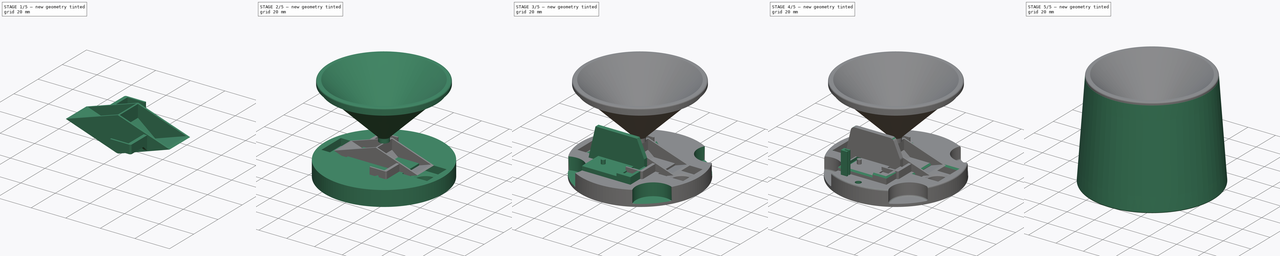
[diagram: build sequence overview — one tinted view per stage of 5, left to right]
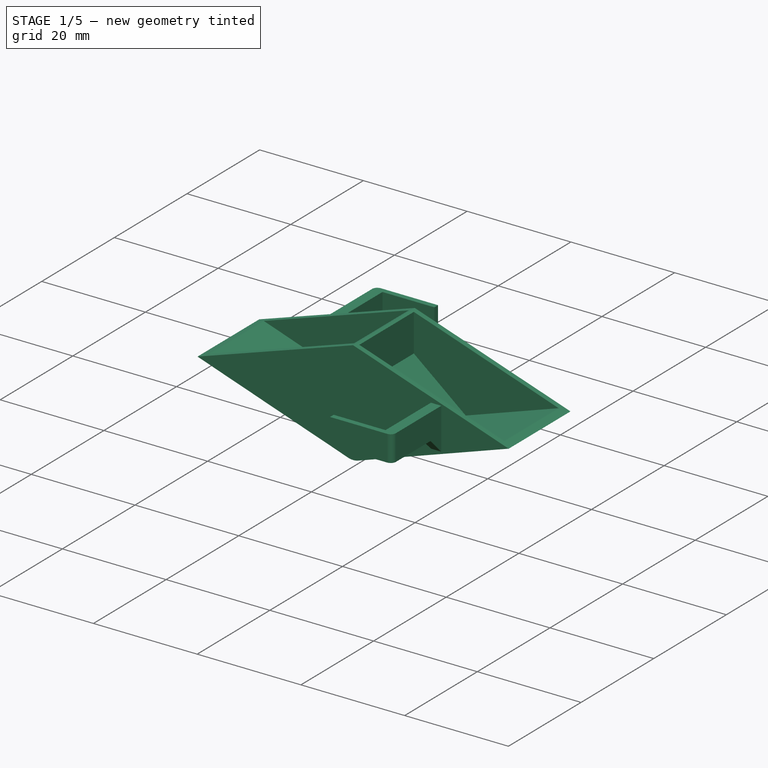
[diagram: stage 1 of 5 — iso view after this stage's code; geometry added in this stage tinted green]
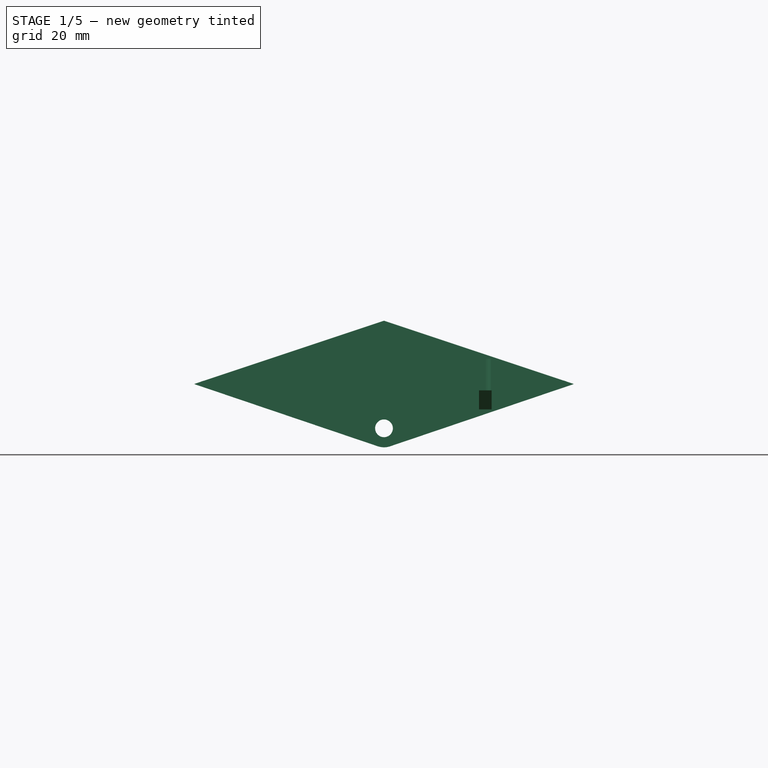
[diagram: stage 1 of 5 — front view after this stage's code; geometry added in this stage tinted green]
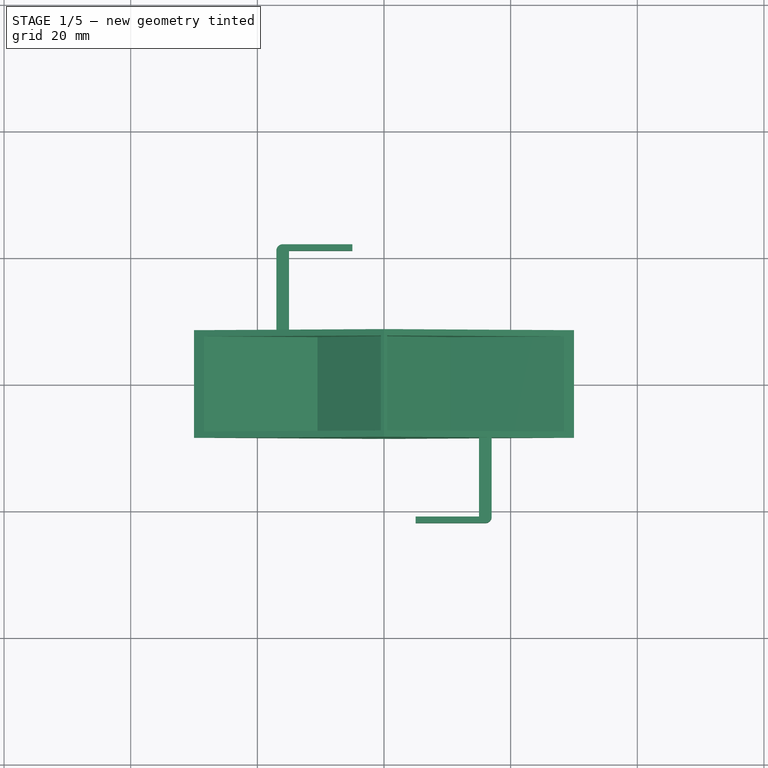
[diagram: stage 1 of 5 — top view after this stage's code; geometry added in this stage tinted green]
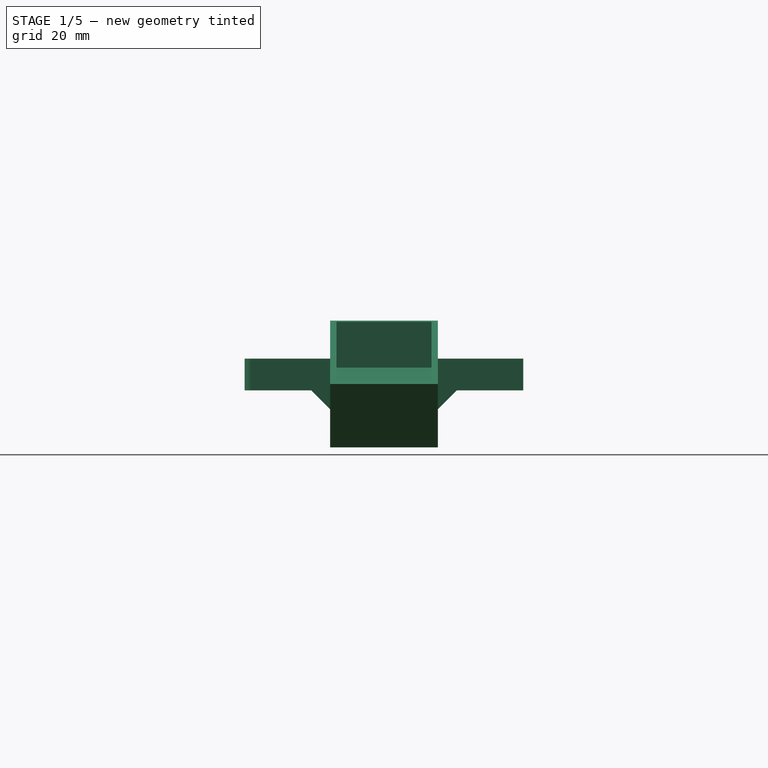
[diagram: stage 1 of 5 — right view after this stage's code; geometry added in this stage tinted green]
FCSTD DOCUMENT  (FreeCAD 0.18.4R)
Label: Rain Guage V3
License: All rights reserved
LicenseURL: http://en.wikipedia.org/wiki/All_rights_reserved
objects: Sketcher::SketchObject×39, PartDesign::Pocket×19, PartDesign::Pad×18, PartDesign::Fillet×13, PartDesign::Chamfer×9, Part::Feature×7, PartDesign::Body×5, PartDesign::Revolution×2, App::Part×1
note: 151 computed .brp shape members not serialized (recipe doc carries the construction recipe); baked Part::Feature solids carry a one-line shape summary decoded from their .brp

FEATURE [PartDesign::Body] Body006  label="Funnel"
  Group = -> [Sketch044,Revolution,Fillet009,Fillet010,Fillet011,Fillet012]
  Origin = -> Origin007
  Placement = pos=(0,0,1) rot=(0,0,1;0rad)
  Tip = -> Fillet012
FEATURE [Sketcher::SketchObject] Sketch047
  AttachmentOffset = pos=(0,0,7.5) rot=(0,0,1;0rad)
  MapMode = 5
  Placement = pos=(0,-7.5,-1.7e-15) rot=(1,0,0;1.5708rad)
  Support = -> [XZ_Plane008]
  sketch-geometry (1):
    g0: Circle CenterX=0 CenterY=3 CenterZ=0 NormalX=0 NormalY=0 NormalZ=1 AngleXU=0 Radius=1.4
  constraints (3):
    c: PointOnObject(g0,g-2)
    c: Diameter(g0) = 2.8
    c: DistanceY(g-1,g0) = 3
FEATURE [Sketcher::SketchObject] Sketch051
  AttachmentOffset = pos=(0,0,7.5) rot=(0,0,1;0rad)
  ExternalGeometry = -> [Sketch047]
  MapMode = 5
  Placement = pos=(0,-7.5,-1.7e-15) rot=(1,0,0;1.5708rad)
  Support = -> [XZ_Plane008]
  sketch-geometry (10):
    g0: LineSegment StartX=0.962959 StartY=0.158748 StartZ=0 EndX=30 EndY=10 EndZ=0
    g1: LineSegment StartX=30 StartY=10 StartZ=0 EndX=28.4323 EndY=10.5245 EndZ=0
    g2: LineSegment StartX=28.4323 StartY=10.5245 StartZ=0 EndX=10.5 EndY=4.44692 EndZ=0
    g3: LineSegment StartX=-0.962959 StartY=0.158748 StartZ=0 EndX=-30 EndY=10 EndZ=0
    g4: LineSegment StartX=-30 StartY=10 StartZ=0 EndX=-28.4323 EndY=10.5245 EndZ=0
    g5: LineSegment StartX=-28.4323 StartY=10.5245 StartZ=0 EndX=-10.5 EndY=4.44692 EndZ=0
    g6: ArcOfCircle CenterX=0 CenterY=3 CenterZ=0 NormalX=0 NormalY=0 NormalZ=1 AngleXU=0 Radius=3 StartAngle=4.38562 EndAngle=5.03916
    g7: LineSegment [constr] StartX=28.4323 StartY=10.5245 StartZ=0 EndX=28.7533 EndY=9.57746 EndZ=0
    g8: LineSegment StartX=0 StartY=13 StartZ=0 EndX=-10.5 EndY=4.44692 EndZ=0
    g9: LineSegment StartX=0 StartY=13 StartZ=0 EndX=10.5 EndY=4.44692 EndZ=0
  constraints (25):
    c: Coincident(g0,g1)
    c: Coincident(g1,g2)
    c: Coincident(g3,g4)
    c: Coincident(g4,g5)
    c: Diameter(g6) = 6
    c: Coincident(g6,g-3)
    c: Tangent(g0,g6) = -1.5708
    c: Tangent(g3,g6) = 1.5708
    c: Symmetric(g0,g3,g-2)
    c: DistanceX(g-1,g0) = 30
    c: DistanceY(g-1,g0) = 10
    c: Symmetric(g1,g4,g-2)
    c: Parallel(g0,g2)
    c: Perpendicular(g0,g7)
    c: PointOnObject(g7,g0)
    c: Coincident(g1,g7)
    c: Distance(g7) = 1
    c: Angle(g1,g-1) = 0.322886
    c: PointOnObject(g8,g-2)
    c: Coincident(g9,g8)
    c: Symmetric(g8,g9,g-2)
    c: Coincident(g2,g9)
    c: Coincident(g5,g8)
    c: DistanceX(g5,g2) = 21
    c: DistanceY(g-1,g8) = 13
FEATURE [PartDesign::Pad] Pad023
  Length = 15
  Length2 = 100
  Placement = pos=(0,0,0) rot=(1,0,0;1.5708rad)
  Profile = -> Sketch051
  Reversed = true
  Type = 0
FEATURE [PartDesign::Pocket] Pocket020
  BaseFeature = -> Pad023
  Length = 6
  Length2 = 100
  Placement = pos=(0,0,0) rot=(1,0,0;1.5708rad)
  Profile = -> Sketch047
  Type = 2
FEATURE [Sketcher::SketchObject] Sketch054
  ExternalGeometry = -> [Pocket020]
  MapMode = 5
  Placement = pos=(0,-7.5,-1.6e-15) rot=(1,0,0;1.5708rad)
  Support = -> [Pocket020]
  sketch-geometry (5):
    g0: LineSegment StartX=-0.5 StartY=5.95804 StartZ=0 EndX=-0.5 EndY=19.8317 EndZ=0
    g1: LineSegment StartX=-0.5 StartY=19.8317 StartZ=0 EndX=0 EndY=20 EndZ=0
    g2: LineSegment StartX=0 StartY=20 StartZ=0 EndX=0.5 EndY=19.8317 EndZ=0
    g3: LineSegment StartX=0.5 StartY=19.8317 StartZ=0 EndX=0.5 EndY=5.95804 EndZ=0
    g4: ArcOfCircle CenterX=1.8e-15 CenterY=3 CenterZ=0 NormalX=0 NormalY=0 NormalZ=1 AngleXU=0 Radius=3 StartAngle=1.40335 EndAngle=1.73824
  constraints (15):
    c: Coincident(g0,g1)
    c: Coincident(g1,g2)
    c: Coincident(g2,g3)
    c: Equal(g4,g-3)
    c: Coincident(g3,g4)
    c: Coincident(g0,g4)
    c: Vertical(g0)
    c: Vertical(g3)
    c: DistanceX(g0,g3) = 1
    c: Symmetric(g3,g0,g-2)
    c: PointOnObject(g1,g-2)
    c: Horizontal(g0,g2)
    c: Angle(g2,g-1) = 0.324631
    c: DistanceY(g4,g1) = 17
    c: Coincident(g4,g-3)
FEATURE [PartDesign::Pad] Pad018
  BaseFeature = -> Pocket020
  Length = 15
  Length2 = 100
  Placement = pos=(0,0,0) rot=(1,0,0;1.5708rad)
  Profile = -> Sketch054
  Reversed = true
  Type = 0
FEATURE [Sketcher::SketchObject] Sketch050
  ExternalGeometry = -> [Pad018]
  MapMode = 5
  Placement = pos=(0,-7.5,-1.6e-15) rot=(1,0,0;1.5708rad)
  Support = -> [Pad018]
  sketch-geometry (5):
    g0: ArcOfCircle CenterX=0 CenterY=3 CenterZ=0 NormalX=0 NormalY=0 NormalZ=1 AngleXU=0 Radius=3 StartAngle=4.38562 EndAngle=5.03916
    g1: LineSegment StartX=-0.962959 StartY=0.158748 StartZ=0 EndX=-30 EndY=10 EndZ=0
    g2: LineSegment StartX=-30 StartY=10 StartZ=0 EndX=0 EndY=20 EndZ=0
    g3: LineSegment StartX=0 StartY=20 StartZ=0 EndX=30 EndY=10 EndZ=0
    g4: LineSegment StartX=30 StartY=10 StartZ=0 EndX=0.962959 EndY=0.158748 EndZ=0
  constraints (12):
    c: Coincident(g1,g2)
    c: Coincident(g3,g4)
    c: Coincident(g1,g-3)
    c: Coincident(g3,g-4)
    c: Tangent(g0,g4) = 1.5708
    c: Tangent(g0,g1) = 1.5708
    c: Coincident(g2,g3)
    c: PointOnObject(g2,g-2)
    c: DistanceY(g-1,g2) = 20
    c: PointOnObject(g0,g-2)
    c: Diameter(g0) = 6
    c: DistanceY(g-1,g0) = 3
FEATURE [PartDesign::Pad] Pad020
  BaseFeature = -> Pad018
  Length = 1
  Length2 = 100
  Placement = pos=(0,0,0) rot=(1,0,0;1.5708rad)
  Profile = -> Sketch050
  Type = 0
FEATURE [Sketcher::SketchObject] Sketch053
  AttachmentOffset = pos=(0,0,-15) rot=(0,0,1;0rad)
  ExternalGeometry = -> [Pad018]
  MapMode = 5
  Placement = pos=(0,7.5,1.8e-15) rot=(1,0,0;1.5708rad)
  Support = -> [Pad018]
  sketch-geometry (5):
    g0: ArcOfCircle CenterX=0 CenterY=3 CenterZ=0 NormalX=0 NormalY=0 NormalZ=1 AngleXU=0 Radius=3 StartAngle=4.38562 EndAngle=5.03916
    g1: LineSegment StartX=-0.962959 StartY=0.158748 StartZ=0 EndX=-30 EndY=10 EndZ=0
    g2: LineSegment StartX=-30 StartY=10 StartZ=0 EndX=0 EndY=20 EndZ=0
    g3: LineSegment StartX=0 StartY=20 StartZ=0 EndX=30 EndY=10 EndZ=0
    g4: LineSegment StartX=30 StartY=10 StartZ=0 EndX=0.962959 EndY=0.158748 EndZ=0
  constraints (12):
    c: Coincident(g1,g2)
    c: Coincident(g3,g4)
    c: Coincident(g1,g-3)
    c: Coincident(g3,g-4)
    c: Tangent(g0,g4) = 1.5708
    c: Tangent(g0,g1) = 1.5708
    c: Coincident(g2,g3)
    c: PointOnObject(g2,g-2)
    c: DistanceY(g-1,g2) = 20
    c: DistanceY(g-1,g0) = 3
    c: Diameter(g0) = 6
    c: PointOnObject(g0,g-2)
FEATURE [PartDesign::Pad] Pad019
  BaseFeature = -> Pad020
  Length = 1
  Length2 = 100
  Placement = pos=(0,0,0) rot=(1,0,0;1.5708rad)
  Profile = -> Sketch053
  Reversed = true
  Type = 0
FEATURE [Sketcher::SketchObject] Sketch049
  MapMode = 5
  Placement = pos=(0,-8.5,-1.9e-15) rot=(1,0,0;1.5708rad)
  Support = -> [Pad019]
  sketch-geometry (1):
    g0: Circle CenterX=0 CenterY=3 CenterZ=0 NormalX=0 NormalY=0 NormalZ=1 AngleXU=0 Radius=1.4
  constraints (3):
    c: PointOnObject(g0,g-2)
    c: Diameter(g0) = 2.8
    c: DistanceY(g-1,g0) = 3
FEATURE [PartDesign::Pocket] Pocket023
  BaseFeature = -> Pad019
  Length = 5
  Length2 = 100
  Placement = pos=(0,0,0) rot=(1,0,0;1.5708rad)
  Profile = -> Sketch049
  Type = 1
FEATURE [Sketcher::SketchObject] Sketch048
  AttachmentOffset = pos=(0,0,9) rot=(0,0,1;0rad)
  ExternalGeometry = -> [Pocket023]
  MapMode = 5
  Placement = pos=(0,0,9) rot=(0,0,1;0rad)
  Support = -> [XY_Plane008]
  sketch-geometry (6):
    g0: LineSegment StartX=5 StartY=-21 StartZ=0 EndX=5 EndY=-22 EndZ=0
    g1: LineSegment StartX=5 StartY=-22 StartZ=0 EndX=17 EndY=-22 EndZ=0
    g2: LineSegment StartX=17 StartY=-22 StartZ=0 EndX=17 EndY=-8.5 EndZ=0
    g3: LineSegment StartX=17 StartY=-8.5 StartZ=0 EndX=15 EndY=-8.5 EndZ=0
    g4: LineSegment StartX=15 StartY=-8.5 StartZ=0 EndX=15 EndY=-21 EndZ=0
    g5: LineSegment StartX=15 StartY=-21 StartZ=0 EndX=5 EndY=-21 EndZ=0
  constraints (18):
    c: Coincident(g0,g1)
    c: Horizontal(g1)
    c: Coincident(g1,g2)
    c: Vertical(g2)
    c: Coincident(g2,g3)
    c: PointOnObject(g3,g-3)
    c: Horizontal(g3)
    c: Coincident(g3,g4)
    c: Vertical(g4)
    c: Coincident(g4,g5)
    c: Coincident(g5,g0)
    c: Horizontal(g5)
    c: Vertical(g0)
    c: DistanceY(g0,g0) = 1
    c: DistanceX(g3,g3) = 2
    c: DistanceY(g2,g2) = 13.5
    c: DistanceX(g1,g1) = 12
    c: DistanceX(g-1,g3) = 15
FEATURE [PartDesign::Pad] Pad022
  BaseFeature = -> Pocket023
  Length = 5
  Length2 = 100
  Placement = pos=(0,0,0) rot=(1,0,0;1.5708rad)
  Profile = -> Sketch048
  Type = 0
FEATURE [Sketcher::SketchObject] Sketch055
  AttachmentOffset = pos=(0,0,9) rot=(0,0,1;3.14159rad)
  ExternalGeometry = -> [Pocket023]
  MapMode = 5
  Placement = pos=(0,0,9) rot=(0,0,1;3.14159rad)
  Support = -> [XY_Plane008]
  sketch-geometry (6):
    g0: LineSegment StartX=5 StartY=-21 StartZ=0 EndX=5 EndY=-22 EndZ=0
    g1: LineSegment StartX=5 StartY=-22 StartZ=0 EndX=17 EndY=-22 EndZ=0
    g2: LineSegment StartX=17 StartY=-22 StartZ=0 EndX=17 EndY=-8.5 EndZ=0
    g3: LineSegment StartX=17 StartY=-8.5 StartZ=0 EndX=15 EndY=-8.5 EndZ=0
    g4: LineSegment StartX=15 StartY=-8.5 StartZ=0 EndX=15 EndY=-21 EndZ=0
    g5: LineSegment StartX=15 StartY=-21 StartZ=0 EndX=5 EndY=-21 EndZ=0
  constraints (18):
    c: Coincident(g0,g1)
    c: Horizontal(g1)
    c: Coincident(g1,g2)
    c: Vertical(g2)
    c: Coincident(g2,g3)
    c: Horizontal(g3)
    c: Vertical(g4)
    c: Coincident(g4,g5)
    c: Coincident(g5,g0)
    c: Horizontal(g5)
    c: Vertical(g0)
    c: DistanceY(g0,g0) = 1
    c: DistanceX(g3,g3) = 2
    c: DistanceY(g2,g2) = 13.5
    c: DistanceX(g1,g1) = 12
    c: DistanceX(g-1,g3) = 15
    c: Coincident(g3,g4)
    c: DistanceY(g3,g-1) = 8.5
FEATURE [PartDesign::Pad] Pad021
  BaseFeature = -> Pad022
  Length = 5
  Length2 = 100
  Placement = pos=(0,0,0) rot=(1,0,0;1.5708rad)
  Profile = -> Sketch055
  Type = 0
FEATURE [PartDesign::Chamfer] Chamfer009
  Base = -> Pad021 [Edge37]
  BaseFeature = -> Pad021
  Placement = pos=(0,0,0) rot=(1,0,0;1.5708rad)
  Size = 3
FEATURE [PartDesign::Chamfer] Chamfer010
  Base = -> Chamfer009 [Edge97]
  BaseFeature = -> Chamfer009
  Placement = pos=(0,0,0) rot=(1,0,0;1.5708rad)
  Size = 3
FEATURE [PartDesign::Fillet] Fillet014
  Base = -> Chamfer010 [Edge110]
  BaseFeature = -> Chamfer010
  Placement = pos=(0,0,0) rot=(1,0,0;1.5708rad)
  Radius = 1
FEATURE [PartDesign::Fillet] Fillet013
  Base = -> Fillet014 [Edge113]
  BaseFeature = -> Fillet014
  Placement = pos=(0,0,0) rot=(1,0,0;1.5708rad)
  Radius = 1
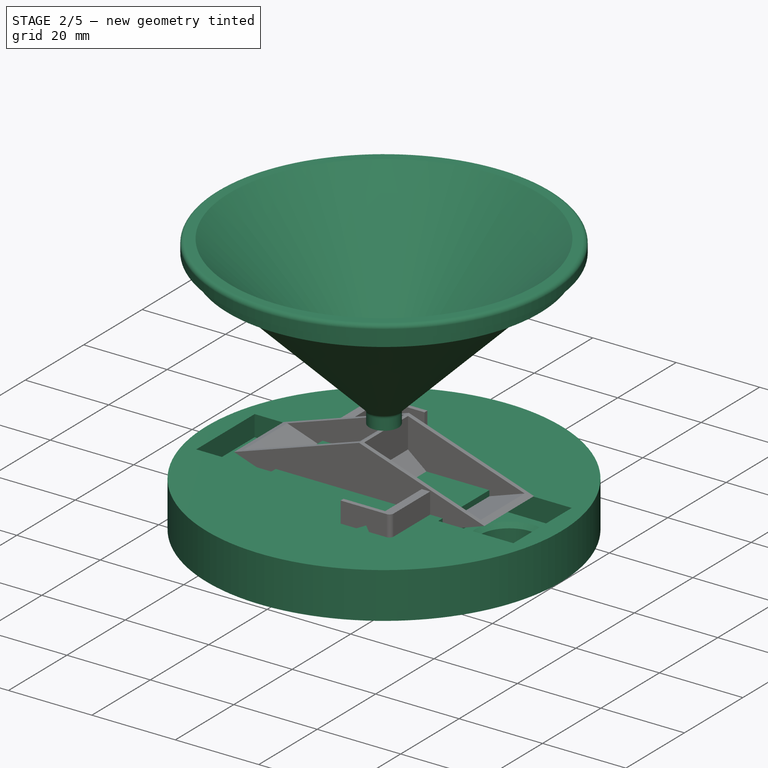
[diagram: stage 2 of 5 — iso view after this stage's code; geometry added in this stage tinted green]
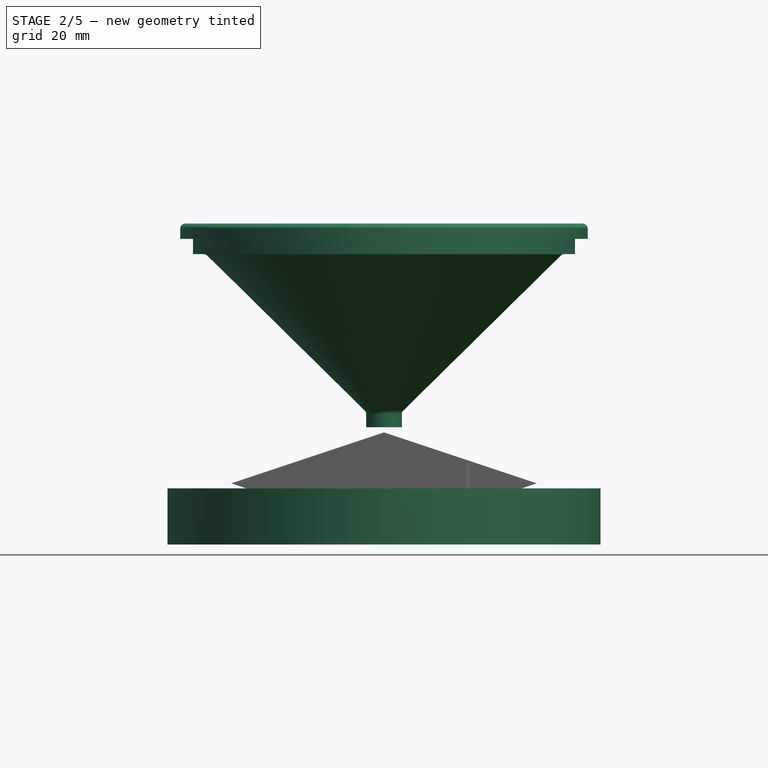
[diagram: stage 2 of 5 — front view after this stage's code; geometry added in this stage tinted green]
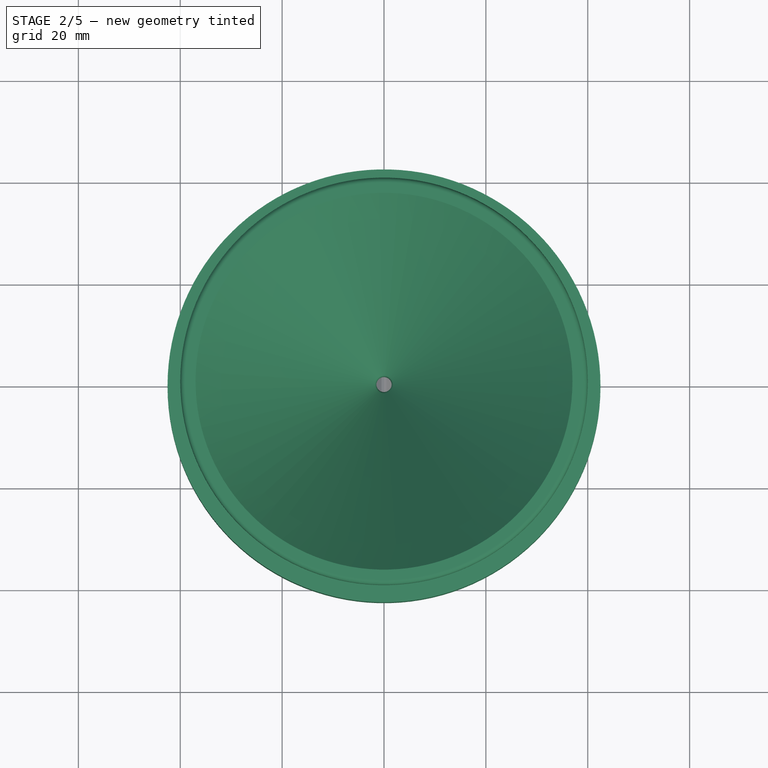
[diagram: stage 2 of 5 — top view after this stage's code; geometry added in this stage tinted green]
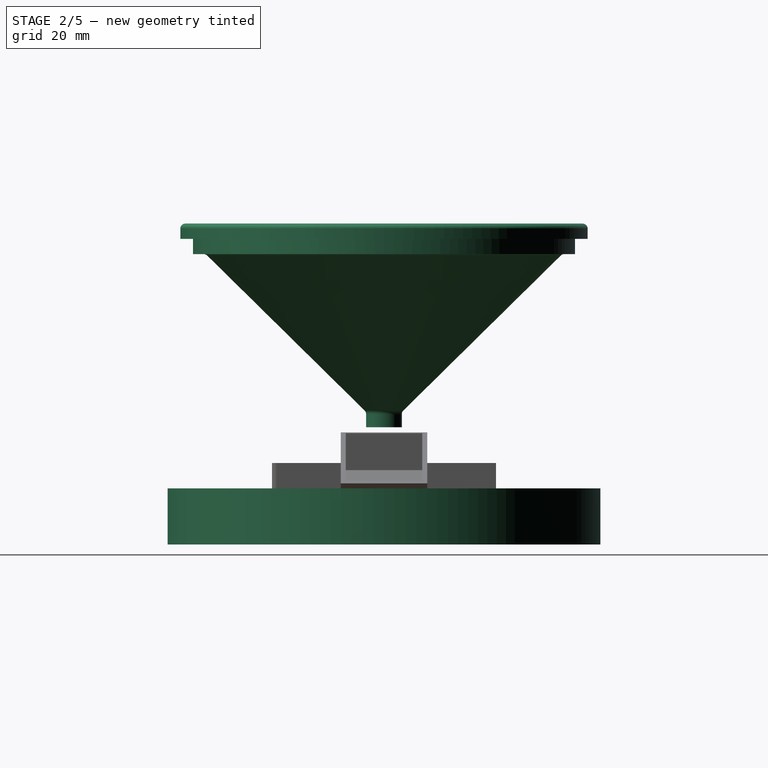
[diagram: stage 2 of 5 — right view after this stage's code; geometry added in this stage tinted green]
FEATURE [Sketcher::SketchObject] Sketch006
  AttachmentOffset = pos=(0,0,-2) rot=(0,0,1;0rad)
  MapMode = 5
  Placement = pos=(0,0,-2) rot=(0,0,1;0rad)
  Support = -> [XY_Plane001]
  sketch-geometry (1):
    g0: Circle CenterX=0 CenterY=0 CenterZ=0 NormalX=0 NormalY=0 NormalZ=1 AngleXU=0 Radius=42.5
  constraints (2):
    c: Diameter(g0) = 85
    c: Coincident(g0,g-1)
FEATURE [PartDesign::Pad] Pad004
  Length = 11
  Length2 = 100
  Profile = -> Sketch006
  Type = 0
FEATURE [Sketcher::SketchObject] Sketch007
  MapMode = 5
  Placement = pos=(0,0,9) rot=(0,0,1;0rad)
  Support = -> [Pad004]
  sketch-geometry (4):
    g0: LineSegment StartX=20 StartY=10 StartZ=0 EndX=38 EndY=10 EndZ=0
    g1: LineSegment StartX=38 StartY=10 StartZ=0 EndX=38 EndY=-10 EndZ=0
    g2: LineSegment StartX=38 StartY=-10 StartZ=0 EndX=20 EndY=-10 EndZ=0
    g3: LineSegment StartX=20 StartY=-10 StartZ=0 EndX=20 EndY=10 EndZ=0
  constraints (11):
    c: Coincident(g0,g1)
    c: Coincident(g1,g2)
    c: Coincident(g2,g3)
    c: Coincident(g3,g0)
    c: Horizontal(g0)
    c: Horizontal(g2)
    c: Vertical(g3)
    c: Symmetric(g0,g1,g-1)
    c: DistanceX(g0,g0) = 18
    c: DistanceY(g1,g1) = 20
    c: DistanceX(g-1,g2) = 20
FEATURE [PartDesign::Pocket] Pocket002
  BaseFeature = -> Pad004
  Length = 5
  Length2 = 100
  Profile = -> Sketch007
  Type = 0
FEATURE [Sketcher::SketchObject] Sketch008
  MapMode = 5
  Placement = pos=(0,0,9) rot=(0,0,1;0rad)
  Support = -> [Pad004]
  sketch-geometry (4):
    g0: LineSegment StartX=-38 StartY=10 StartZ=0 EndX=-20 EndY=10 EndZ=0
    g1: LineSegment StartX=-20 StartY=10 StartZ=0 EndX=-20 EndY=-10 EndZ=0
    g2: LineSegment StartX=-20 StartY=-10 StartZ=0 EndX=-38 EndY=-10 EndZ=0
    g3: LineSegment StartX=-38 StartY=-10 StartZ=0 EndX=-38 EndY=10 EndZ=0
  constraints (11):
    c: Coincident(g0,g1)
    c: Coincident(g1,g2)
    c: Coincident(g2,g3)
    c: Coincident(g3,g0)
    c: Horizontal(g0)
    c: Horizontal(g2)
    c: Vertical(g3)
    c: Symmetric(g0,g1,g-1)
    c: DistanceX(g0,g0) = 18
    c: DistanceY(g1,g1) = 20
    c: DistanceX(g1,g-1) = 20
FEATURE [PartDesign::Pocket] Pocket003
  BaseFeature = -> Pocket002
  Length = 5
  Length2 = 100
  Profile = -> Sketch008
  Type = 0
FEATURE [Sketcher::SketchObject] Sketch009
  ExternalGeometry = -> [Pocket003]
  MapMode = 5
  Placement = pos=(0,0,4) rot=(0,0,1;0rad)
  Support = -> [Pocket003]
  sketch-geometry (1):
    g0: Circle CenterX=30 CenterY=0 CenterZ=0 NormalX=0 NormalY=0 NormalZ=1 AngleXU=0 Radius=7
  constraints (3):
    c: PointOnObject(g0,g-1)
    c: Diameter(g0) = 14
    c: DistanceX(g0,g-3) = 8
FEATURE [PartDesign::Pocket] Pocket004
  BaseFeature = -> Pocket003
  Length = 5
  Length2 = 100
  Profile = -> Sketch009
  Type = 2
FEATURE [PartDesign::Chamfer] Chamfer
  Base = -> Pocket004 [Edge13]
  BaseFeature = -> Pocket004
  Size = 1
FEATURE [PartDesign::Body] Body001  label="Base"
  Group = -> [Sketch006,Pad004,Sketch007,Pocket002,Sketch008,Pocket003,Sketch009,Pocket004,Chamfer,Sketch010,Pocket005,Chamfer001,Sketch011,Pad005,Sketch012,Pad006,Sketch022,Pad011,Sketch023,Pocket008,Sketch024,Pad012,Sketch025,Pad013,Sketch027,Pad014,Sketch028,Pocket009,Sketch029,Pocket010,Sketch030,Pocket011,Sketch031,Pocket012,Fillet002,Fillet003,Fillet004,Chamfer004,Chamfer005,Fillet005,Fillet006,+18 more]
  Origin = -> Origin001
  Placement = pos=(0,0,-12) rot=(0,0,1;0rad)
  Tip = -> Fillet008
FEATURE [Sketcher::SketchObject] Sketch044
  MapMode = 5
  Placement = pos=(0,0,0) rot=(1,0,0;1.5708rad)
  Support = -> [XZ_Plane007]
  sketch-geometry (10):
    g0: LineSegment StartX=40 StartY=61 StartZ=0 EndX=40 EndY=58 EndZ=0
    g1: LineSegment StartX=40 StartY=58 StartZ=0 EndX=37.5 EndY=58 EndZ=0
    g2: LineSegment StartX=37.5 StartY=58 StartZ=0 EndX=37.5 EndY=55 EndZ=0
    g3: LineSegment StartX=37.5 StartY=55 StartZ=0 EndX=35 EndY=55 EndZ=0
    g4: LineSegment StartX=1.5 StartY=25.5 StartZ=0 EndX=1.5 EndY=21 EndZ=0
    g5: LineSegment StartX=1.5 StartY=21 StartZ=0 EndX=3.5 EndY=21 EndZ=0
    g6: LineSegment StartX=3.5 StartY=24 StartZ=0 EndX=35 EndY=55 EndZ=0
    g7: LineSegment StartX=40 StartY=61 StartZ=0 EndX=37 EndY=61 EndZ=0
    g8: LineSegment StartX=37 StartY=61 StartZ=0 EndX=1.5 EndY=25.5 EndZ=0
    g9: LineSegment StartX=3.5 StartY=24 StartZ=0 EndX=3.5 EndY=21 EndZ=0
  constraints (30):
    c: Vertical(g0)
    c: Coincident(g0,g1)
    c: Horizontal(g1)
    c: Coincident(g1,g2)
    c: Vertical(g2)
    c: Coincident(g2,g3)
    c: Horizontal(g3)
    c: Vertical(g4)
    c: Coincident(g4,g5)
    c: Horizontal(g5)
    c: Coincident(g6,g3)
    c: Coincident(g0,g7)
    c: Coincident(g7,g8)
    c: Horizontal(g7)
    c: DistanceX(g-1,g4) = 1.5
    c: DistanceY(g-1,g4) = 21
    c: Coincident(g8,g4)
    c: DistanceX(g5,g5) = 2
    c: DistanceY(g4,g4) = 4.5
    c: DistanceX(g-1,g0) = 40
    c: DistanceY(g0,g0) = 3
    c: Equal(g0,g2)
    c: DistanceX(g1,g1) = 2.5
    c: Equal(g1,g3)
    c: DistanceX(g7,g7) = 3
    c: DistanceY(g4,g7) = 40
    c: Coincident(g9,g6)
    c: Coincident(g9,g5)
    c: Vertical(g9)
    c: DistanceY(g9,g9) = 3
FEATURE [PartDesign::Revolution] Revolution
  Angle = 360
  Axis = (0,2e-16,1)
  Base = (0,0,0)
  Placement = pos=(0,0,0) rot=(1,0,0;1.5708rad)
  Profile = -> Sketch044
  ReferenceAxis = -> Sketch044 [V_Axis]
  Reversed = true
FEATURE [PartDesign::Fillet] Fillet009
  Base = -> Revolution [Edge14]
  BaseFeature = -> Revolution
  Placement = pos=(0,0,0) rot=(1,0,0;1.5708rad)
  Radius = 1
FEATURE [PartDesign::Fillet] Fillet010
  Base = -> Fillet009 [Edge11]
  BaseFeature = -> Fillet009
  Placement = pos=(0,0,0) rot=(1,0,0;1.5708rad)
  Radius = 1
FEATURE [PartDesign::Fillet] Fillet011
  Base = -> Fillet010 [Edge18]
  BaseFeature = -> Fillet010
  Placement = pos=(0,0,0) rot=(1,0,0;1.5708rad)
  Radius = 1
FEATURE [PartDesign::Fillet] Fillet012
  Base = -> Fillet011 [Edge8]
  BaseFeature = -> Fillet011
  Placement = pos=(0,0,0) rot=(1,0,0;1.5708rad)
  Radius = 1
FEATURE [Sketcher::SketchObject] Sketch056
  ExternalGeometry = -> [Fillet013]
  MapMode = 5
  Placement = pos=(0,-22,4.8e-15) rot=(1,0,0;1.5708rad)
  Support = -> [Fillet013]
  sketch-geometry (3):
    g0: LineSegment StartX=8.8 StartY=9 StartZ=0 EndX=11.1388 EndY=10.2436 EndZ=0
    g1: LineSegment StartX=11.1388 StartY=10.2436 StartZ=0 EndX=11.8 EndY=9 EndZ=0
    g2: LineSegment StartX=11.8 StartY=9 StartZ=0 EndX=8.8 EndY=9 EndZ=0
  constraints (9):
    c: PointOnObject(g0,g-3)
    c: Coincident(g0,g1)
    c: PointOnObject(g1,g-3)
    c: Coincident(g1,g2)
    c: Coincident(g2,g0)
    c: Angle(g0,g1) = 1.5708
    c: Angle(g2,g0) = 0.488692
    c: DistanceX(g2,g2) = 3
    c: DistanceX(g-3,g0) = 3.8
FEATURE [PartDesign::Pocket] Pocket022
  BaseFeature = -> Fillet013
  Length = 5
  Length2 = 100
  Placement = pos=(0,0,0) rot=(1,0,0;1.5708rad)
  Profile = -> Sketch056
  Type = 2
FEATURE [Sketcher::SketchObject] Sketch052
  ExternalGeometry = -> [Pocket022]
  MapMode = 5
  Placement = pos=(2.6e-15,22,-4.8e-15) rot=(-1,0,0;1.5708rad)
  Support = -> [Pocket022]
  sketch-geometry (3):
    g0: LineSegment StartX=-11.8 StartY=-9 StartZ=0 EndX=-11.1388 EndY=-10.2436 EndZ=0
    g1: LineSegment StartX=-11.1388 StartY=-10.2436 StartZ=0 EndX=-8.8 EndY=-9 EndZ=0
    g2: LineSegment StartX=-8.8 StartY=-9 StartZ=0 EndX=-11.8 EndY=-9 EndZ=0
  constraints (9):
    c: PointOnObject(g0,g-3)
    c: Coincident(g0,g1)
    c: PointOnObject(g1,g-3)
    c: Coincident(g1,g2)
    c: Coincident(g2,g0)
    c: Angle(g1,g0) = 1.5708
    c: Angle(g2,g1) = 0.488692
    c: DistanceX(g2,g2) = 3
    c: DistanceX(g1,g-3) = 3.8
FEATURE [PartDesign::Pocket] Pocket021
  BaseFeature = -> Pocket022
  Length = 5
  Length2 = 100
  Placement = pos=(0,0,0) rot=(1,0,0;1.5708rad)
  Profile = -> Sketch052
  Type = 2
FEATURE [PartDesign::Body] Body007  label="Bucket"
  Group = -> [Sketch047,Sketch051,Pad023,Pocket020,Sketch054,Pad018,Sketch050,Pad020,Sketch053,Pad019,Sketch049,Pocket023,Sketch048,Pad022,Sketch055,Pad021,Chamfer009,Chamfer010,Fillet014,Fillet013,Sketch056,Pocket022,Sketch052,Pocket021]
  Origin = -> Origin008
  Placement = pos=(-0.036651,0,0.000223891) rot=(0,1,0;0.012217rad)
  Tip = -> Pocket021
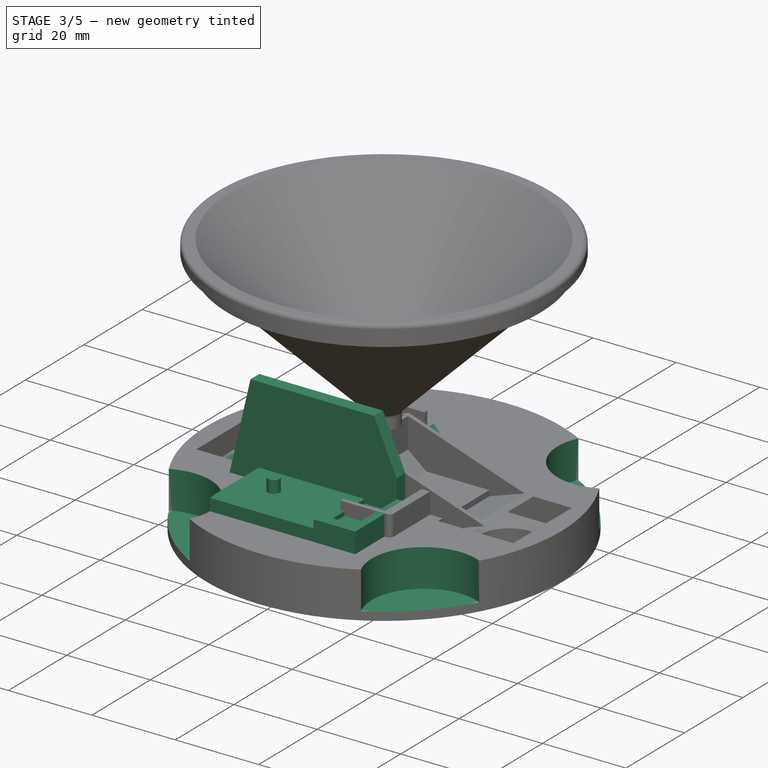
[diagram: stage 3 of 5 — iso view after this stage's code; geometry added in this stage tinted green]
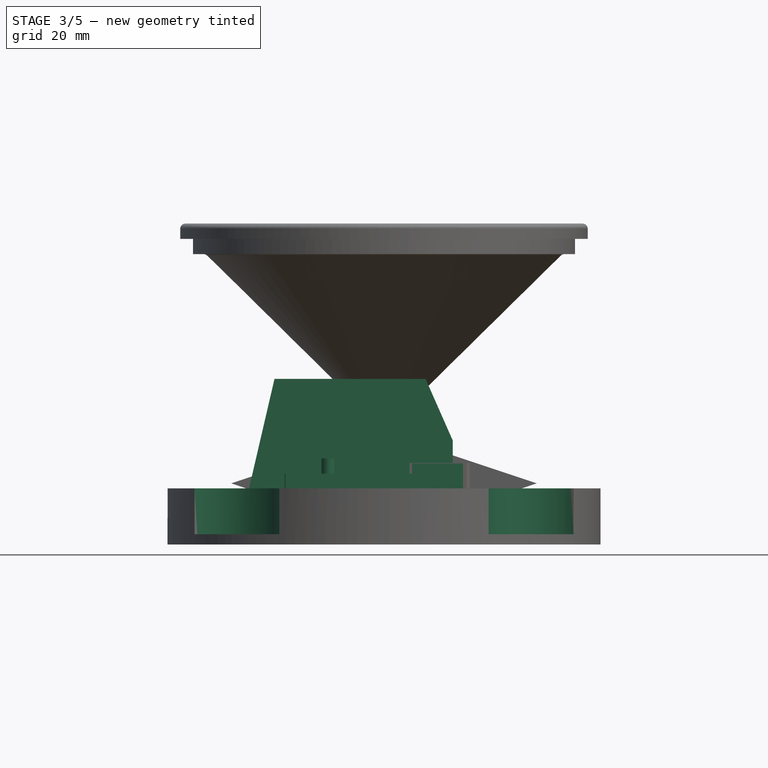
[diagram: stage 3 of 5 — front view after this stage's code; geometry added in this stage tinted green]
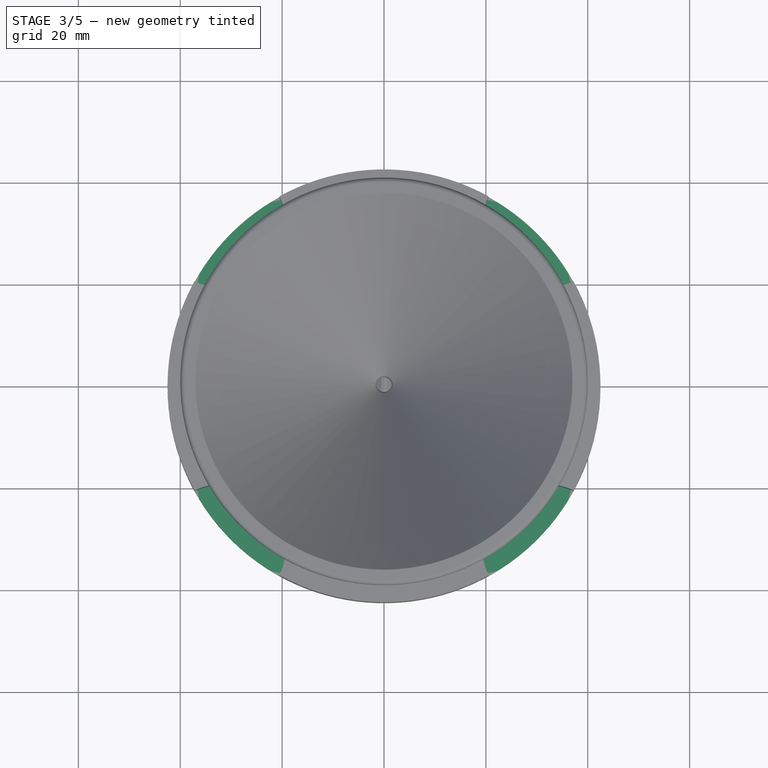
[diagram: stage 3 of 5 — top view after this stage's code; geometry added in this stage tinted green]
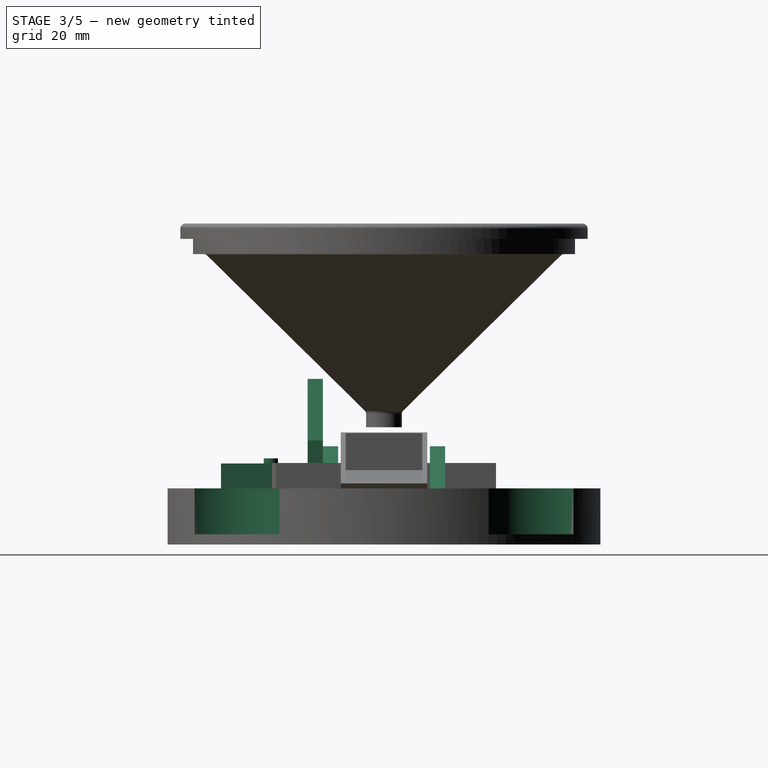
[diagram: stage 3 of 5 — right view after this stage's code; geometry added in this stage tinted green]
FEATURE [Sketcher::SketchObject] Sketch010
  ExternalGeometry = -> [Chamfer]
  MapMode = 5
  Placement = pos=(0,0,4) rot=(0,0,1;0rad)
  Support = -> [Chamfer]
  sketch-geometry (1):
    g0: Circle CenterX=-30 CenterY=0 CenterZ=0 NormalX=0 NormalY=0 NormalZ=1 AngleXU=0 Radius=7
  constraints (3):
    c: Equal(g0,g-3)
    c: PointOnObject(g0,g-1)
    c: DistanceX(g-4,g0) = 8
FEATURE [PartDesign::Pocket] Pocket005
  BaseFeature = -> Chamfer
  Length = 5
  Length2 = 100
  Profile = -> Sketch010
  Type = 2
FEATURE [PartDesign::Chamfer] Chamfer001
  Base = -> Pocket005 [Edge15]
  BaseFeature = -> Pocket005
  Size = 1
FEATURE [Sketcher::SketchObject] Sketch011
  AttachmentOffset = pos=(0,0,1) rot=(0,0,1;0rad)
  MapMode = 5
  Placement = pos=(0,9,2e-16) rot=(1,0,0;1.5708rad)
  Support = -> [Chamfer001]
  sketch-geometry (6):
    g0: ArcOfCircle CenterX=1e-16 CenterY=15 CenterZ=0 NormalX=0 NormalY=0 NormalZ=1 AngleXU=0 Radius=1.55 StartAngle=2.94682 EndAngle=6.47796
    g1: LineSegment StartX=3.51914 StartY=17.2746 StartZ=0 EndX=1.52069 EndY=15.3 EndZ=0
    g2: LineSegment StartX=-3.51914 StartY=17.2746 StartZ=0 EndX=-1.52069 EndY=15.3 EndZ=0
    g3: LineSegment StartX=3.51914 StartY=17.2746 StartZ=0 EndX=10.4817 EndY=9 EndZ=0
    g4: LineSegment StartX=10.4817 StartY=9 StartZ=0 EndX=-10.4817 EndY=9 EndZ=0
    g5: LineSegment StartX=-10.4817 StartY=9 StartZ=0 EndX=-3.51914 EndY=17.2746 EndZ=0
  constraints (13):
    c: Symmetric(g0,g0,g-2)
    c: Diameter(g0) = 3.1
    c: DistanceY(g-1,g0) = 15
    c: DistanceY(g0,g0) = 0.3
    c: Coincident(g1,g0)
    c: Coincident(g2,g0)
    c: Symmetric(g1,g2,g-2)
    c: Coincident(g1,g3)
    c: Coincident(g3,g4)
    c: Coincident(g4,g5)
    c: Coincident(g5,g2)
    c: Symmetric(g3,g4,g-2)
    c: DistanceY(g-1,g3) = 9
FEATURE [PartDesign::Pad] Pad005
  BaseFeature = -> Chamfer001
  Length = 3
  Length2 = 100
  Profile = -> Sketch011
  Reversed = true
  Type = 0
FEATURE [Sketcher::SketchObject] Sketch012
  AttachmentOffset = pos=(0,0,19) rot=(0,0,1;0rad)
  MapMode = 5
  Placement = pos=(0,-9,4.2e-15) rot=(1,0,0;1.5708rad)
  Support = -> [Chamfer001]
  sketch-geometry (6):
    g0: ArcOfCircle CenterX=1e-16 CenterY=15 CenterZ=0 NormalX=0 NormalY=0 NormalZ=1 AngleXU=0 Radius=1.55 StartAngle=2.94682 EndAngle=6.47796
    g1: LineSegment StartX=3.51914 StartY=17.2746 StartZ=0 EndX=1.52069 EndY=15.3 EndZ=0
    g2: LineSegment StartX=-3.51914 StartY=17.2746 StartZ=0 EndX=-1.52069 EndY=15.3 EndZ=0
    g3: LineSegment StartX=3.51914 StartY=17.2746 StartZ=0 EndX=10.4817 EndY=9 EndZ=0
    g4: LineSegment StartX=10.4817 StartY=9 StartZ=0 EndX=-10.4817 EndY=9 EndZ=0
    g5: LineSegment StartX=-10.4817 StartY=9 StartZ=0 EndX=-3.51914 EndY=17.2746 EndZ=0
  constraints (13):
    c: Symmetric(g0,g0,g-2)
    c: Diameter(g0) = 3.1
    c: DistanceY(g-1,g0) = 15
    c: DistanceY(g0,g0) = 0.3
    c: Coincident(g1,g0)
    c: Coincident(g2,g0)
    c: Symmetric(g1,g2,g-2)
    c: Coincident(g1,g3)
    c: Coincident(g3,g4)
    c: Coincident(g4,g5)
    c: Coincident(g5,g2)
    c: Symmetric(g3,g4,g-2)
    c: DistanceY(g-1,g3) = 9
FEATURE [PartDesign::Pad] Pad006
  BaseFeature = -> Pad005
  Length = 3
  Length2 = 100
  Profile = -> Sketch012
  Type = 0
FEATURE [PartDesign::Body] Body004  label="Sensor"
  Group = -> [Sketch016,Pad007,Sketch017,Pocket006,Sketch018,Pad008,Sketch019,Pocket007]
  Origin = -> Origin004
  Placement = pos=(13.5,-15,1.5) rot=(0,0,1;3.14159rad)
  Tip = -> Pocket007
FEATURE [Sketcher::SketchObject] Sketch022
  ExternalGeometry = -> [Pad006]
  MapMode = 5
  Placement = pos=(0,0,9) rot=(0,0,1;0rad)
  Support = -> [Pad006]
  sketch-geometry (4):
    g0: LineSegment StartX=-19.5 StartY=-12 StartZ=0 EndX=15.5 EndY=-12 EndZ=0
    g1: LineSegment StartX=15.5 StartY=-12 StartZ=0 EndX=15.5 EndY=-32 EndZ=0
    g2: LineSegment StartX=15.5 StartY=-32 StartZ=0 EndX=-19.5 EndY=-32 EndZ=0
    g3: LineSegment StartX=-19.5 StartY=-32 StartZ=0 EndX=-19.5 EndY=-12 EndZ=0
  constraints (12):
    c: Coincident(g0,g1)
    c: Coincident(g1,g2)
    c: Coincident(g2,g3)
    c: Coincident(g3,g0)
    c: Horizontal(g0)
    c: Horizontal(g2)
    c: Vertical(g1)
    c: Vertical(g3)
    c: Horizontal(g-3,g0)
    c: DistanceY(g1,g1) = 20
    c: DistanceX(g2,g2) = 35
    c: DistanceX(g-1,g0) = 15.5
FEATURE [PartDesign::Pad] Pad011
  BaseFeature = -> Pad006
  Length = 2.9
  Length2 = 100
  Profile = -> Sketch022
  Type = 0
FEATURE [Sketcher::SketchObject] Sketch023
  ExternalGeometry = -> [Pad011]
  MapMode = 5
  Placement = pos=(0,0,11.9) rot=(0,0,1;0rad)
  Support = -> [Pad011]
  sketch-geometry (4):
    g0: LineSegment StartX=5.9 StartY=-15 StartZ=0 EndX=13.3 EndY=-15 EndZ=0
    g1: LineSegment StartX=13.3 StartY=-15 StartZ=0 EndX=13.3 EndY=-28.4 EndZ=0
    g2: LineSegment StartX=13.3 StartY=-28.4 StartZ=0 EndX=5.9 EndY=-28.4 EndZ=0
    g3: LineSegment StartX=5.9 StartY=-28.4 StartZ=0 EndX=5.9 EndY=-15 EndZ=0
  constraints (12):
    c: Coincident(g0,g1)
    c: Coincident(g1,g2)
    c: Coincident(g2,g3)
    c: Coincident(g3,g0)
    c: Horizontal(g0)
    c: Horizontal(g2)
    c: Vertical(g1)
    c: Vertical(g3)
    c: DistanceX(g0,g0) = 7.4
    c: DistanceY(g3,g3) = 13.4
    c: DistanceY(g0,g-3) = 3
    c: DistanceX(g0,g-3) = 2.2
FEATURE [PartDesign::Pocket] Pocket008
  BaseFeature = -> Pad011
  Length = 1
  Length2 = 100
  Profile = -> Sketch023
  Type = 0
FEATURE [Sketcher::SketchObject] Sketch024
  ExternalGeometry = -> [Pocket008]
  MapMode = 5
  Placement = pos=(0,0,11.9) rot=(0,0,1;0rad)
  Support = -> [Pocket008]
  sketch-geometry (1):
    g0: Circle CenterX=-10.9 CenterY=-22.2 CenterZ=0 NormalX=0 NormalY=0 NormalZ=1 AngleXU=0 Radius=1.4
  constraints (3):
    c: Diameter(g0) = 2.8
    c: DistanceX(g-3,g0) = 8.6
    c: DistanceY(g0,g-3) = 10.2
FEATURE [PartDesign::Pad] Pad012
  BaseFeature = -> Pocket008
  Length = 3
  Length2 = 100
  Profile = -> Sketch024
  Type = 0
FEATURE [Sketcher::SketchObject] Sketch025
  ExternalGeometry = -> [Pad012]
  MapMode = 5
  Placement = pos=(0,0,11.9) rot=(0,0,1;0rad)
  Support = -> [Pad012]
  sketch-geometry (6):
    g0: LineSegment StartX=5.5 StartY=-32 StartZ=0 EndX=15.5 EndY=-32 EndZ=0
    g1: LineSegment StartX=15.5 StartY=-32 StartZ=0 EndX=15.5 EndY=-14.95 EndZ=0
    g2: LineSegment StartX=5.5 StartY=-32 StartZ=0 EndX=5.5 EndY=-29.45 EndZ=0
    g3: LineSegment StartX=5.5 StartY=-29.45 StartZ=0 EndX=13.6 EndY=-29.45 EndZ=0
    g4: LineSegment StartX=13.6 StartY=-29.45 StartZ=0 EndX=13.6 EndY=-14.95 EndZ=0
    g5: LineSegment StartX=13.6 StartY=-14.95 StartZ=0 EndX=15.5 EndY=-14.95 EndZ=0
  constraints (17):
    c: Coincident(g0,g1)
    c: Horizontal(g0)
    c: Coincident(g0,g2)
    c: Vertical(g2)
    c: Coincident(g2,g3)
    c: Horizontal(g3)
    c: Coincident(g3,g4)
    c: Vertical(g4)
    c: Coincident(g4,g5)
    c: Horizontal(g5)
    c: Coincident(g0,g-4)
    c: DistanceY(g4,g4) = 14.5
    c: DistanceX(g3,g0) = 1.9
    c: DistanceY(g0,g3) = 2.55
    c: DistanceX(g0,g0) = 10
    c: Vertical(g1)
    c: Coincident(g1,g5)
FEATURE [PartDesign::Pad] Pad013
  BaseFeature = -> Pad012
  Length = 2
  Length2 = 100
  Profile = -> Sketch025
  Type = 0
FEATURE [Sketcher::SketchObject] Sketch027
  ExternalGeometry = -> [Pad013]
  MapMode = 5
  Placement = pos=(0,-12,2.8e-15) rot=(1,0,0;1.5708rad)
  Support = -> [Pad013]
  sketch-geometry (5):
    g0: LineSegment StartX=-26.5 StartY=9 StartZ=0 EndX=13.5 EndY=9 EndZ=0
    g1: LineSegment StartX=13.5 StartY=9 StartZ=0 EndX=13.5 EndY=18.4 EndZ=0
    g2: LineSegment StartX=13.5 StartY=18.4 StartZ=0 EndX=8.16326 EndY=30.5 EndZ=0
    g3: LineSegment StartX=8.16326 StartY=30.5 StartZ=0 EndX=-21.5 EndY=30.5 EndZ=0
    g4: LineSegment StartX=-21.5 StartY=30.5 StartZ=0 EndX=-26.5 EndY=9 EndZ=0
  constraints (15):
    c: Horizontal(g0)
    c: Coincident(g0,g1)
    c: Vertical(g1)
    c: Coincident(g1,g2)
    c: Horizontal(g3)
    c: Coincident(g3,g4)
    c: Coincident(g4,g0)
    c: Coincident(g2,g3)
    c: Horizontal(g-3,g0)
    c: DistanceX(g0,g0) = 40
    c: DistanceX(g-1,g0) = 13.5
    c: DistanceY(g0,g3) = 21.5
    c: Angle(g2,g-1) = 1.15541
    c: DistanceY(g1,g1) = 9.4
    c: DistanceX(g0,g3) = 5
FEATURE [PartDesign::Pad] Pad014
  BaseFeature = -> Pad013
  Length = 3
  Length2 = 100
  Profile = -> Sketch027
  Type = 0
FEATURE [Sketcher::SketchObject] Sketch028
  ExternalGeometry = -> [Pad014]
  MapMode = 5
  Placement = pos=(0,0,9) rot=(0,0,1;0rad)
  Support = -> [Pad014]
  sketch-geometry (3):
    g0: LineSegment [constr] StartX=0 StartY=0 StartZ=0 EndX=31.8198 EndY=31.8198 EndZ=0
    g1: ArcOfCircle CenterX=31.8198 CenterY=31.8198 CenterZ=0 NormalX=0 NormalY=0 NormalZ=1 AngleXU=0 Radius=12.5 StartAngle=2.69603 EndAngle=5.15795
    g2: ArcOfCircle CenterX=0 CenterY=0 CenterZ=0 NormalX=0 NormalY=0 NormalZ=1 AngleXU=0 Radius=42.5 StartAngle=0.504419 EndAngle=1.06638
  constraints (9):
    c: Coincident(g0,g-1)
    c: Coincident(g1,g0)
    c: PointOnObject(g1,g-3)
    c: Diameter(g1) = 25
    c: Angle(g-1,g0) = 0.785398
    c: Distance(g-1,g1) = 45
    c: Coincident(g2,g-1)
    c: Coincident(g2,g1)
    c: Coincident(g2,g1)
FEATURE [PartDesign::Pocket] Pocket009
  BaseFeature = -> Pad014
  Length = 9
  Length2 = 100
  Profile = -> Sketch028
  Type = 0
FEATURE [Sketcher::SketchObject] Sketch029
  ExternalGeometry = -> [Pad014]
  MapMode = 5
  Placement = pos=(0,0,9) rot=(0,0,1;0rad)
  Support = -> [Pad014]
  sketch-geometry (3):
    g0: LineSegment [constr] StartX=0 StartY=0 StartZ=0 EndX=-31.8198 EndY=31.8198 EndZ=0
    g1: ArcOfCircle CenterX=-31.8198 CenterY=31.8198 CenterZ=0 NormalX=0 NormalY=0 NormalZ=1 AngleXU=0 Radius=12.5 StartAngle=4.26683 EndAngle=6.72875
    g2: ArcOfCircle CenterX=0 CenterY=0 CenterZ=0 NormalX=0 NormalY=0 NormalZ=1 AngleXU=0 Radius=42.5 StartAngle=2.07522 EndAngle=2.63717
  constraints (9):
    c: Coincident(g0,g-1)
    c: Coincident(g1,g0)
    c: PointOnObject(g1,g-3)
    c: Diameter(g1) = 25
    c: Angle(g-1,g0) = 2.35619
    c: Distance(g-1,g1) = 45
    c: Coincident(g2,g-1)
    c: Coincident(g2,g1)
    c: Coincident(g2,g1)
FEATURE [PartDesign::Pocket] Pocket010
  BaseFeature = -> Pocket009
  Length = 9
  Length2 = 100
  Profile = -> Sketch029
  Type = 0
FEATURE [Sketcher::SketchObject] Sketch030
  ExternalGeometry = -> [Pad014]
  MapMode = 5
  Placement = pos=(0,0,9) rot=(0,0,1;0rad)
  Support = -> [Pad014]
  sketch-geometry (3):
    g0: LineSegment [constr] StartX=0 StartY=0 StartZ=0 EndX=31.8198 EndY=-31.8198 EndZ=0
    g1: ArcOfCircle CenterX=31.8198 CenterY=-31.8198 CenterZ=0 NormalX=0 NormalY=0 NormalZ=1 AngleXU=0 Radius=12.5 StartAngle=1.12524 EndAngle=3.58715
    g2: ArcOfCircle CenterX=0 CenterY=0 CenterZ=0 NormalX=0 NormalY=0 NormalZ=1 AngleXU=0 Radius=42.5 StartAngle=5.21681 EndAngle=5.77877
  constraints (9):
    c: Coincident(g0,g-1)
    c: Coincident(g1,g0)
    c: PointOnObject(g1,g-3)
    c: Diameter(g1) = 25
    c: Distance(g-1,g1) = 45
    c: Coincident(g2,g-1)
    c: Coincident(g2,g1)
    c: Coincident(g2,g1)
    c: Angle(g0,g-1) = 0.785398
FEATURE [PartDesign::Pocket] Pocket011
  BaseFeature = -> Pocket010
  Length = 9
  Length2 = 100
  Profile = -> Sketch030
  Type = 0
FEATURE [Sketcher::SketchObject] Sketch031
  AttachmentOffset = pos=(0,0,3) rot=(0,0,1;0rad)
  ExternalGeometry = -> [Pad014]
  MapMode = 5
  Placement = pos=(0,0,12) rot=(0,0,1;0rad)
  Support = -> [Pad014]
  sketch-geometry (3):
    g0: LineSegment [constr] StartX=0 StartY=0 StartZ=0 EndX=-31.8198 EndY=-31.8198 EndZ=0
    g1: ArcOfCircle CenterX=-31.8198 CenterY=-31.8198 CenterZ=0 NormalX=0 NormalY=0 NormalZ=1 AngleXU=0 Radius=12.5 StartAngle=5.83762 EndAngle=8.29954
    g2: ArcOfCircle CenterX=0 CenterY=0 CenterZ=0 NormalX=0 NormalY=0 NormalZ=1 AngleXU=0 Radius=42.5 StartAngle=3.64601 EndAngle=4.20797
  constraints (9):
    c: Coincident(g0,g-1)
    c: Coincident(g1,g0)
    c: PointOnObject(g1,g-3)
    c: Diameter(g1) = 25
    c: Distance(g-1,g1) = 45
    c: Coincident(g2,g-1)
    c: Coincident(g2,g1)
    c: Coincident(g2,g1)
    c: Angle(g0,g-1) = 2.35619
FEATURE [PartDesign::Pocket] Pocket012
  BaseFeature = -> Pocket011
  Length = 12
  Length2 = 100
  Profile = -> Sketch031
  Type = 0
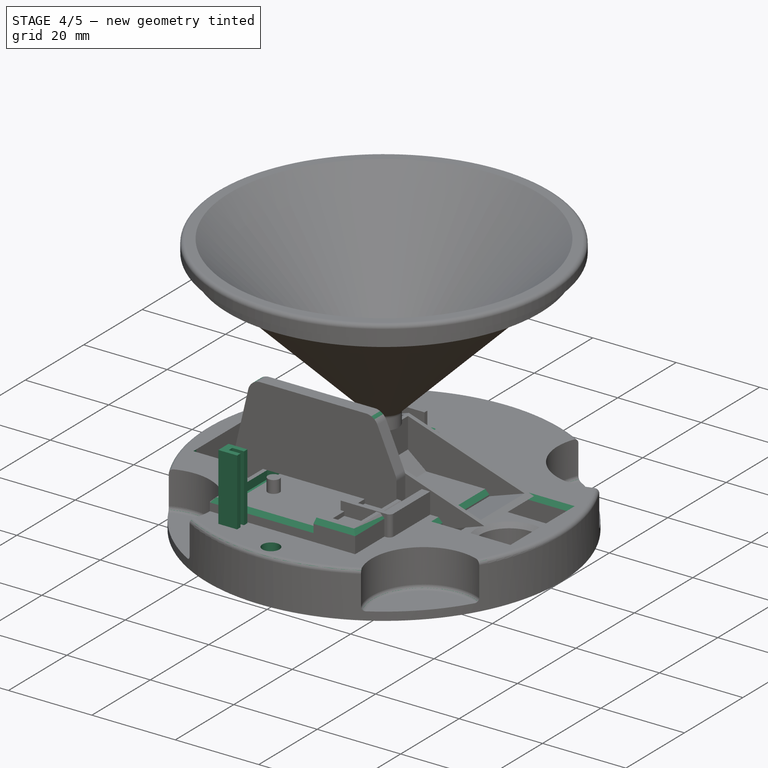
[diagram: stage 4 of 5 — iso view after this stage's code; geometry added in this stage tinted green]
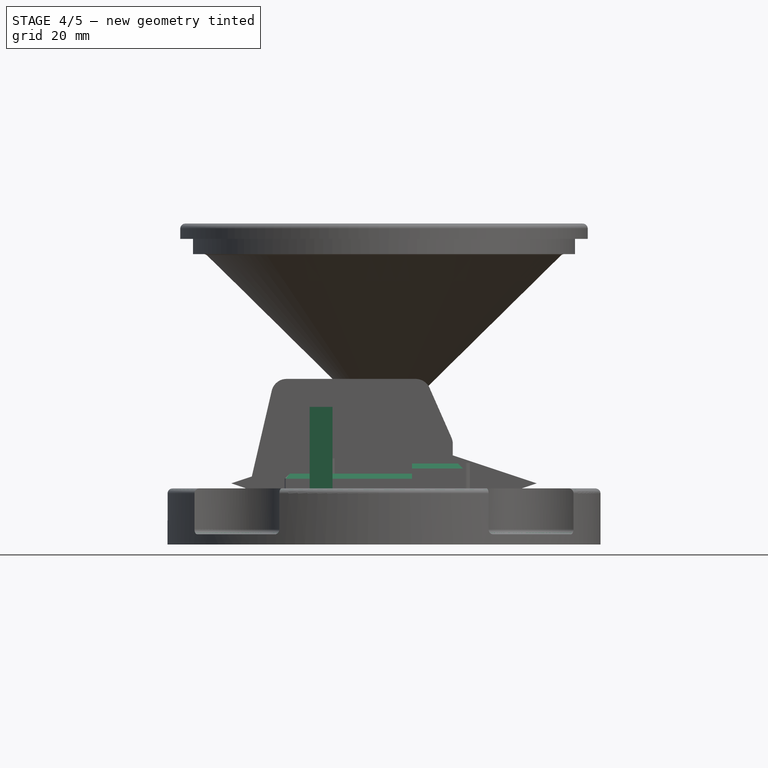
[diagram: stage 4 of 5 — front view after this stage's code; geometry added in this stage tinted green]
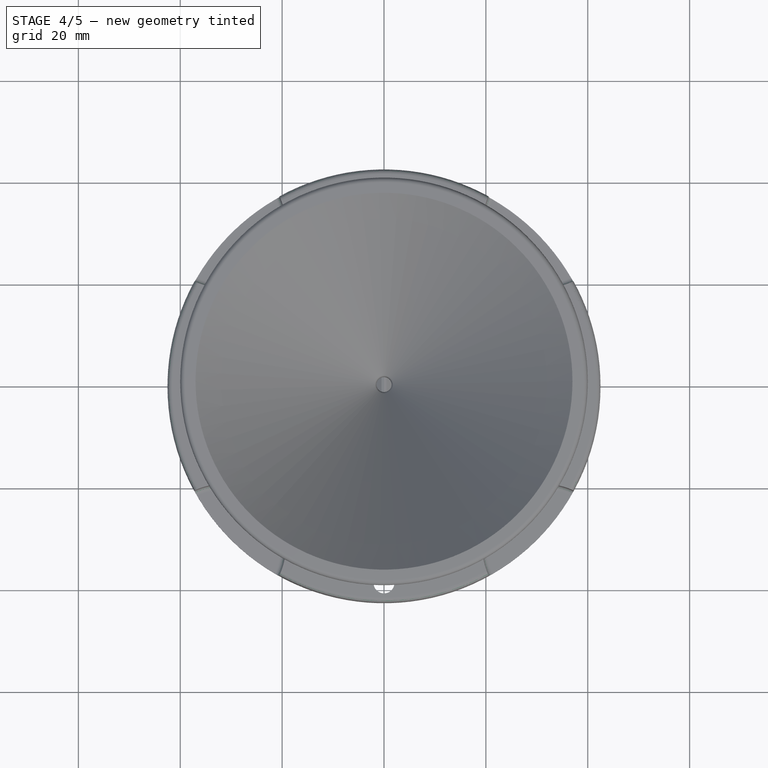
[diagram: stage 4 of 5 — top view after this stage's code; geometry added in this stage tinted green]
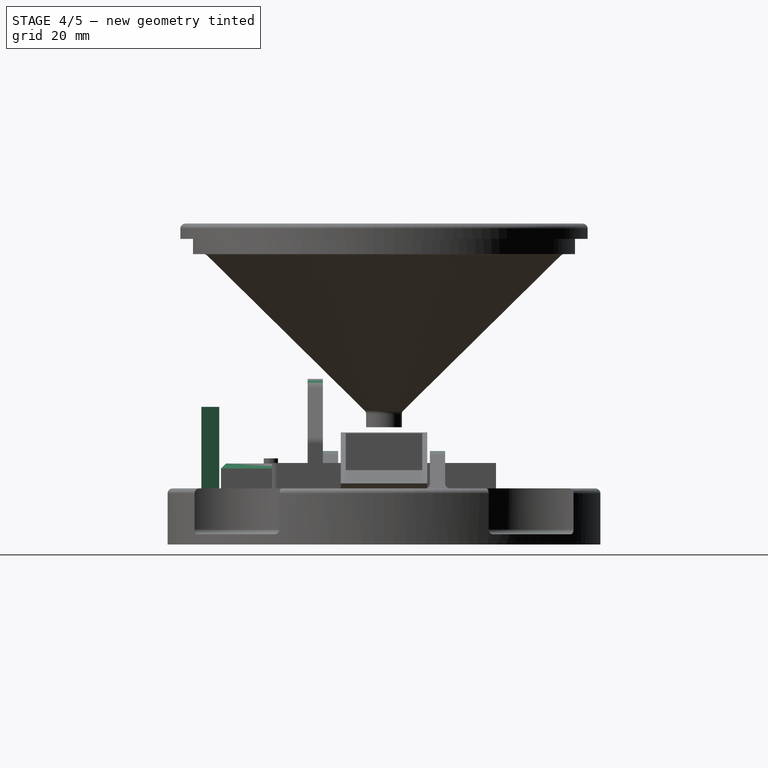
[diagram: stage 4 of 5 — right view after this stage's code; geometry added in this stage tinted green]
FEATURE [PartDesign::Fillet] Fillet002
  Base = -> Pocket012 [Edge15,Edge31,Edge27,Edge23,Edge19]
  BaseFeature = -> Pocket012
  Radius = 1
FEATURE [PartDesign::Fillet] Fillet003
  Base = -> Fillet002 [Edge31,Edge45,Edge38,Edge25]
  BaseFeature = -> Fillet002
  Radius = 1
FEATURE [PartDesign::Fillet] Fillet004
  Base = -> Fillet003 [Edge79,Edge78,Edge71]
  BaseFeature = -> Fillet003
  Radius = 1
FEATURE [PartDesign::Chamfer] Chamfer004
  Base = -> Fillet004 [Edge12,Edge10,Edge13]
  BaseFeature = -> Fillet004
  Size = 1
FEATURE [PartDesign::Chamfer] Chamfer005
  Base = -> Chamfer004 [Edge17,Edge16,Edge18]
  BaseFeature = -> Chamfer004
  Size = 1
FEATURE [PartDesign::Fillet] Fillet005
  Base = -> Chamfer005 [Edge118,Edge189,Edge190]
  BaseFeature = -> Chamfer005
  Radius = 3
FEATURE [PartDesign::Fillet] Fillet006
  Base = -> Fillet005 [Edge118,Edge125,Edge75,Edge86]
  BaseFeature = -> Fillet005
  Radius = 2
FEATURE [PartDesign::Body] Body003  label="Case"
  Group = -> [Sketch015,Revolution001,Fillet007]
  Origin = -> Origin003
  Tip = -> Fillet007
FEATURE [PartDesign::Chamfer] Chamfer006
  Base = -> Fillet006 [Edge207,Edge209,Edge137]
  BaseFeature = -> Fillet006
  Size = 1
FEATURE [PartDesign::Chamfer] Chamfer007
  Base = -> Chamfer006 [Edge72]
  BaseFeature = -> Chamfer006
  Size = 1
FEATURE [Sketcher::SketchObject] Sketch032
  ExternalGeometry = -> [Chamfer007]
  MapMode = 5
  Placement = pos=(0,0,11.9) rot=(0,0,1;0rad)
  Support = -> [Chamfer007]
  sketch-geometry (4):
    g0: LineSegment StartX=-17.5 StartY=-29 StartZ=0 EndX=-14.5 EndY=-29 EndZ=0
    g1: LineSegment StartX=-14.5 StartY=-29 StartZ=0 EndX=-14.5 EndY=-15 EndZ=0
    g2: LineSegment StartX=-14.5 StartY=-15 StartZ=0 EndX=-17.5 EndY=-15 EndZ=0
    g3: LineSegment StartX=-17.5 StartY=-15 StartZ=0 EndX=-17.5 EndY=-29 EndZ=0
  constraints (12):
    c: Coincident(g0,g1)
    c: Coincident(g1,g2)
    c: Coincident(g2,g3)
    c: Coincident(g3,g0)
    c: Horizontal(g0)
    c: Horizontal(g2)
    c: Vertical(g1)
    c: Vertical(g3)
    c: Horizontal(g2,g-4)
    c: DistanceX(g-4,g0) = 1
    c: DistanceY(g-4,g0) = 2
    c: DistanceX(g0,g0) = 3
FEATURE [PartDesign::Pocket] Pocket013
  BaseFeature = -> Chamfer007
  Length = 2
  Length2 = 100
  Profile = -> Sketch032
  Type = 0
FEATURE [Part::Feature] Part__Feature001  label="WEMOS_D1_MINI_V_3_0_0_PUSH_BUTTON_180111_01"
  Placement = pos=(-9.5,-13.425,1.258) rot=(0,0,1;0rad)
  shape: bbox 3.5 x 4.6 x 1.5 mm, 15 faces (baked)
FEATURE [Part::Feature] Part__Feature005  label="_050170001_stp1_01"
  Placement = pos=(0.75,-13.975,1.693) rot=(1,0,0;1.5708rad)
  shape: bbox 8.2 x 5.4 x 3.3 mm, 428 faces (baked)
FEATURE [Part::Feature] Part__Feature  label="WEMOS_D1_MINI_V_3_0_0_PCB_180112_01"
  shape: bbox 25.7 x 34.25 x 1.052 mm, 2188 faces (baked)
FEATURE [Part::Feature] Part__Feature002  label="QFN_32_1EP_5x5mm_Pitch0_5mm_step1_01"
  Placement = pos=(-0.428608,4.20361,0.508) rot=(0,0,-1;0.785398rad)
  shape: bbox 7.043 x 7.043 x 0.77 mm, 206 faces (baked)
FEATURE [Part::Feature] Part__Feature004  label="ABM8_STEP1_01"
  Placement = pos=(5.40135,7.61497,0.508254) rot=(0.862856,-0.357407,-0.357407;1.71777rad)
  shape: bbox 3.664 x 3.664 x 0.8003 mm, 120 faces (baked)
FEATURE [Part::Feature] Part__Feature006  label="SOIC_16_3_9x9_9mm_Pitch1_27mm_step1_01"
  Placement = pos=(-2.85,-5.075,-0.508) rot=(0,1,0;3.14159rad)
  shape: bbox 6 x 9.9 x 1.75 mm, 276 faces (baked)
FEATURE [Part::Feature] Part__Feature003  label="SOIJ_8_5_3x5_3mm_Pitch1_27mm_step1_01"
  Placement = pos=(5.22,-5.255,0.508) rot=(0,0,1;1.5708rad)
  shape: bbox 5.3 x 7.94 x 2.01 mm, 156 faces (baked)
FEATURE [App::Part] ASSEMBLY  label="ESP8266"
  Group = -> [Part__Feature,Part__Feature001,Part__Feature002,Part__Feature003,Part__Feature004,Part__Feature005,Part__Feature006]
  Origin = -> Origin005
  Placement = pos=(0,-34.1,16.5) rot=(0,-0.707107,0.707107;3.14159rad)
FEATURE [Sketcher::SketchObject] Sketch033
  MapMode = 5
  Placement = pos=(0,0,9) rot=(0,0,1;0rad)
  Support = -> [Pocket013]
  sketch-geometry (8):
    g0: LineSegment StartX=-12.9 StartY=-33.5 StartZ=0 EndX=-12.9 EndY=-34.7 EndZ=0
    g1: LineSegment StartX=-12.9 StartY=-34.7 StartZ=0 EndX=-10.1 EndY=-34.7 EndZ=0
    g2: LineSegment StartX=-10.1 StartY=-34.7 StartZ=0 EndX=-10.1 EndY=-35.85 EndZ=0
    g3: LineSegment StartX=-10.1 StartY=-35.85 StartZ=0 EndX=-14.6 EndY=-35.85 EndZ=0
    g4: LineSegment StartX=-14.6 StartY=-35.85 StartZ=0 EndX=-14.6 EndY=-32.35 EndZ=0
    g5: LineSegment StartX=-14.6 StartY=-32.35 StartZ=0 EndX=-10.1 EndY=-32.35 EndZ=0
    g6: LineSegment StartX=-10.1 StartY=-32.35 StartZ=0 EndX=-10.1 EndY=-33.5 EndZ=0
    g7: LineSegment StartX=-10.1 StartY=-33.5 StartZ=0 EndX=-12.9 EndY=-33.5 EndZ=0
  constraints (24):
    c: Vertical(g0)
    c: Coincident(g0,g1)
    c: Horizontal(g1)
    c: Coincident(g1,g2)
    c: Coincident(g2,g3)
    c: Horizontal(g3)
    c: Coincident(g3,g4)
    c: Vertical(g4)
    c: Coincident(g4,g5)
    c: Horizontal(g5)
    c: Coincident(g5,g6)
    c: Vertical(g6)
    c: Coincident(g6,g7)
    c: Coincident(g7,g0)
    c: Horizontal(g7)
    c: DistanceY(g0,g0) = 1.2
    c: Vertical(g2)
    c: Vertical(g1,g6)
    c: Equal(g2,g6)
    c: DistanceY(g4,g4) = 3.5
    c: DistanceY(g0,g-1) = 33.5
    c: DistanceX(g7,g7) = 2.8
    c: DistanceX(g0,g-1) = 12.9
    c: DistanceX(g5,g5) = 4.5
FEATURE [PartDesign::Pad] Pad015
  BaseFeature = -> Pocket013
  Length = 16
  Length2 = 100
  Profile = -> Sketch033
  Type = 0
FEATURE [Sketcher::SketchObject] Sketch036
  MapMode = 5
  Placement = pos=(0,0,9) rot=(0,0,1;0rad)
  sketch-geometry (1):
    g0: Circle CenterX=0 CenterY=-38.7 CenterZ=0 NormalX=0 NormalY=0 NormalZ=1 AngleXU=0 Radius=2.05
  constraints (3):
    c: PointOnObject(g0,g-2)
    c: Diameter(g0) = 4.1
    c: DistanceY(g0,g-1) = 38.7
FEATURE [PartDesign::Pocket] Pocket014
  BaseFeature = -> Pad015
  Length = 5
  Length2 = 100
  Profile = -> Sketch036
  Type = 2
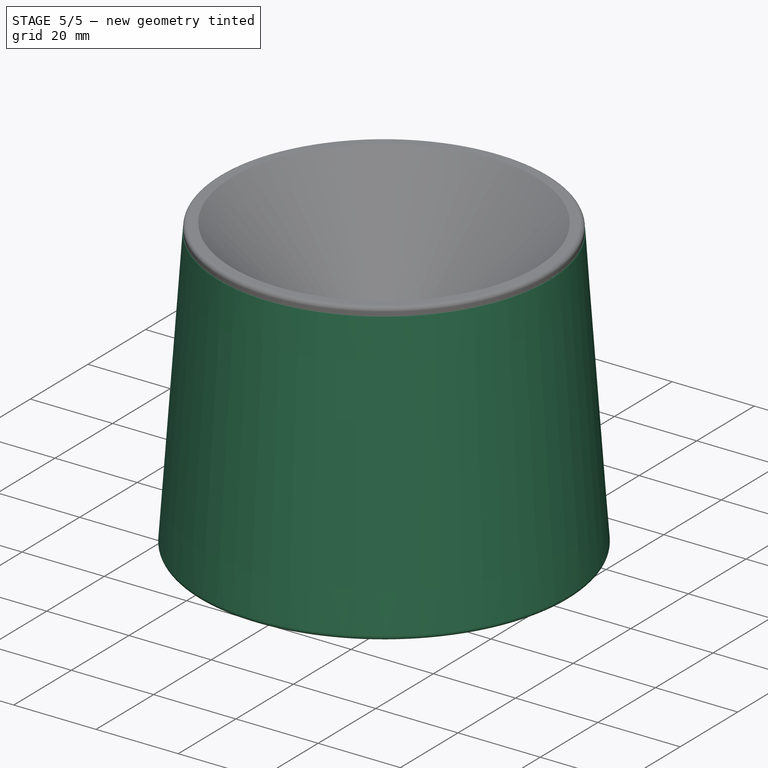
[diagram: stage 5 of 5 — iso view after this stage's code; geometry added in this stage tinted green]
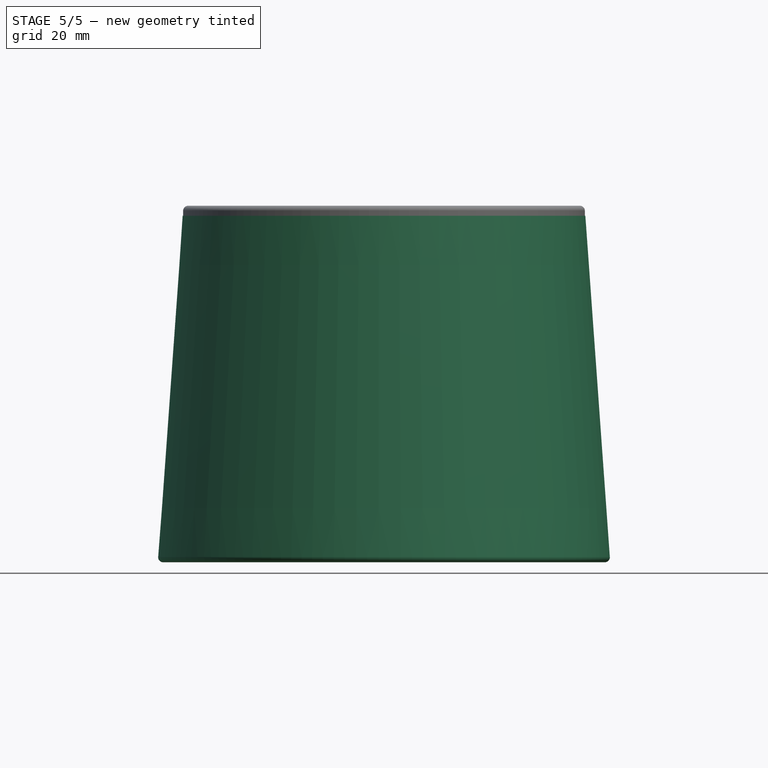
[diagram: stage 5 of 5 — front view after this stage's code; geometry added in this stage tinted green]
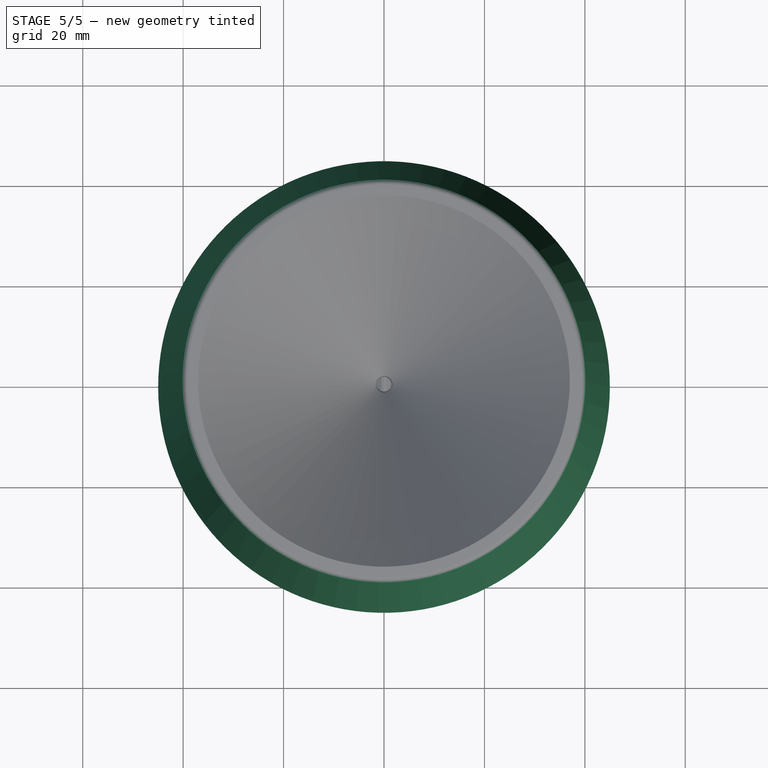
[diagram: stage 5 of 5 — top view after this stage's code; geometry added in this stage tinted green]
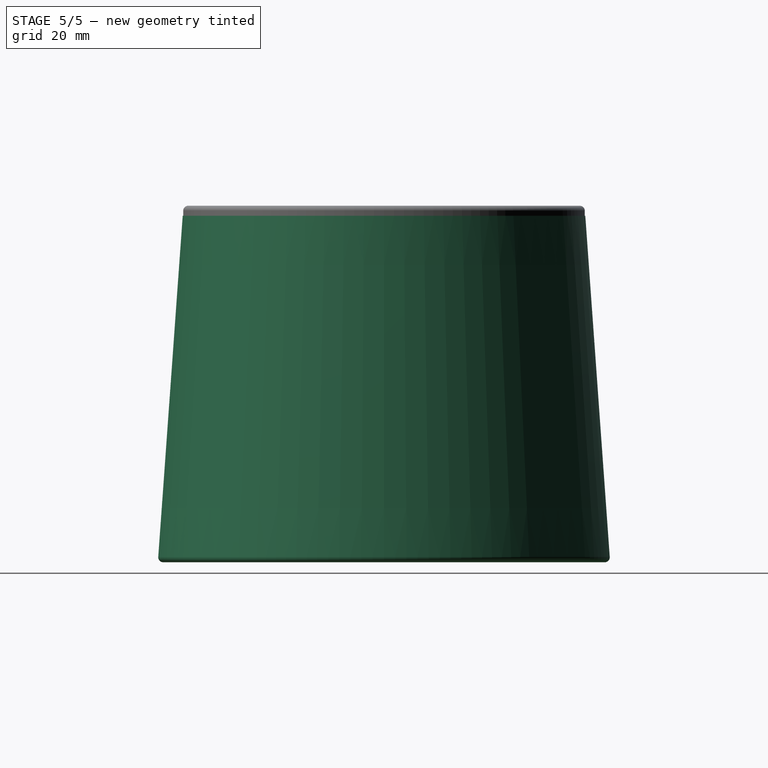
[diagram: stage 5 of 5 — right view after this stage's code; geometry added in this stage tinted green]
FEATURE [Sketcher::SketchObject] Sketch015
  MapMode = 5
  Placement = pos=(0,0,0) rot=(1,0,0;1.5708rad)
  Support = -> [XZ_Plane003]
  sketch-geometry (8):
    g0: LineSegment StartX=40.1 StartY=59 StartZ=0 EndX=45.05 EndY=-10 EndZ=0
    g1: LineSegment StartX=45.05 StartY=-10 StartZ=0 EndX=42.55 EndY=-10 EndZ=0
    g2: LineSegment StartX=42.55 StartY=-10 StartZ=0 EndX=42.55 EndY=-3 EndZ=0
    g3: LineSegment StartX=42.55 StartY=-3 StartZ=0 EndX=40.05 EndY=-3 EndZ=0
    g4: LineSegment StartX=40.05 StartY=-3 StartZ=0 EndX=35.1 EndY=56 EndZ=0
    g5: LineSegment StartX=35.1 StartY=56 StartZ=0 EndX=37.6 EndY=56 EndZ=0
    g6: LineSegment StartX=37.6 StartY=56 StartZ=0 EndX=37.6 EndY=59 EndZ=0
    g7: LineSegment StartX=37.6 StartY=59 StartZ=0 EndX=40.1 EndY=59 EndZ=0
  constraints (24):
    c: Coincident(g0,g1)
    c: Horizontal(g1)
    c: Coincident(g1,g2)
    c: Vertical(g2)
    c: Coincident(g2,g3)
    c: Horizontal(g3)
    c: Coincident(g3,g4)
    c: Coincident(g4,g5)
    c: Horizontal(g5)
    c: Coincident(g5,g6)
    c: Vertical(g6)
    c: Coincident(g6,g7)
    c: Coincident(g7,g0)
    c: Horizontal(g7)
    c: DistanceX(g-1,g1) = 42.55
    c: DistanceX(g3,g3) = 2.5
    c: Equal(g1,g3)
    c: Equal(g3,g5)
    c: Equal(g7,g5)
    c: DistanceY(g2,g-1) = 3
    c: DistanceY(g-1,g4) = 56
    c: DistanceY(g6,g6) = 3
    c: DistanceY(g1,g2) = 7
    c: DistanceX(g-1,g5) = 37.6
FEATURE [PartDesign::Revolution] Revolution001
  Angle = 360
  Axis = (0,2e-16,1)
  Base = (0,0,0)
  Placement = pos=(0,0,0) rot=(1,0,0;1.5708rad)
  Profile = -> Sketch015
  ReferenceAxis = -> Sketch015 [V_Axis]
  Reversed = true
FEATURE [Sketcher::SketchObject] Sketch016
  AttachmentOffset = pos=(0,0,-1.6) rot=(0,0,1;0rad)
  MapMode = 5
  Placement = pos=(0,0,-1.6) rot=(0,0,1;0rad)
  Support = -> [XY_Plane004]
  sketch-geometry (4):
    g0: LineSegment StartX=0 StartY=0 StartZ=0 EndX=31.3 EndY=0 EndZ=0
    g1: LineSegment StartX=31.3 StartY=0 StartZ=0 EndX=31.3 EndY=14.4 EndZ=0
    g2: LineSegment StartX=31.3 StartY=14.4 StartZ=0 EndX=0 EndY=14.4 EndZ=0
    g3: LineSegment StartX=0 StartY=14.4 StartZ=0 EndX=0 EndY=0 EndZ=0
  constraints (11):
    c: Coincident(g0,g1)
    c: Coincident(g1,g2)
    c: Coincident(g2,g3)
    c: Coincident(g3,g0)
    c: Horizontal(g0)
    c: Horizontal(g2)
    c: Vertical(g1)
    c: Vertical(g3)
    c: Coincident(g0,g-1)
    c: DistanceX(g2,g2) = 31.3
    c: DistanceY(g3,g3) = 14.4
FEATURE [PartDesign::Pad] Pad007
  Length = 1.6
  Length2 = 100
  Profile = -> Sketch016
  Type = 0
FEATURE [Sketcher::SketchObject] Sketch017
  MapMode = 5
  Placement = pos=(0,0,-2e-16) rot=(0,0,1;0rad)
  Support = -> [Pad007]
  sketch-geometry (1):
    g0: Circle CenterX=24.4 CenterY=7.2 CenterZ=0 NormalX=0 NormalY=0 NormalZ=1 AngleXU=0 Radius=1.5
  constraints (3):
    c: DistanceY(g-1,g0) = 7.2
    c: DistanceX(g-1,g0) = 24.4
    c: Diameter(g0) = 3
FEATURE [PartDesign::Pocket] Pocket006
  BaseFeature = -> Pad007
  Length = 5
  Length2 = 100
  Profile = -> Sketch017
  Type = 2
FEATURE [Sketcher::SketchObject] Sketch018
  MapMode = 5
  Placement = pos=(0,0,-2e-16) rot=(0,0,1;0rad)
  Support = -> [Pocket006]
  sketch-geometry (4):
    g0: LineSegment StartX=0.85 StartY=13.2 StartZ=0 EndX=6.85 EndY=13.2 EndZ=0
    g1: LineSegment StartX=6.85 StartY=13.2 StartZ=0 EndX=6.85 EndY=0 EndZ=0
    g2: LineSegment StartX=6.85 StartY=0 StartZ=0 EndX=0.85 EndY=0 EndZ=0
    g3: LineSegment StartX=0.85 StartY=0 StartZ=0 EndX=0.85 EndY=13.2 EndZ=0
  constraints (12):
    c: Coincident(g0,g1)
    c: Coincident(g1,g2)
    c: Coincident(g2,g3)
    c: Coincident(g3,g0)
    c: Horizontal(g0)
    c: Horizontal(g2)
    c: Vertical(g1)
    c: Vertical(g3)
    c: DistanceX(g0,g0) = 6
    c: DistanceY(g3,g3) = 13.2
    c: Horizontal(g2,g-1)
    c: DistanceX(g-1,g2) = 0.85
FEATURE [PartDesign::Pad] Pad008
  BaseFeature = -> Pocket006
  Length = 10.2
  Length2 = 100
  Profile = -> Sketch018
  Type = 0
FEATURE [Sketcher::SketchObject] Sketch019
  ExternalGeometry = -> [Pad008]
  MapMode = 5
  Placement = pos=(0,0,10.2) rot=(0,0,1;0rad)
  Support = -> [Pad008]
  sketch-geometry (4):
    g0: LineSegment StartX=0.85 StartY=9.05 StartZ=0 EndX=6.85 EndY=9.05 EndZ=0
    g1: LineSegment StartX=6.85 StartY=9.05 StartZ=0 EndX=6.85 EndY=4.05 EndZ=0
    g2: LineSegment StartX=6.85 StartY=4.05 StartZ=0 EndX=0.85 EndY=4.05 EndZ=0
    g3: LineSegment StartX=0.85 StartY=4.05 StartZ=0 EndX=0.85 EndY=9.05 EndZ=0
  constraints (12):
    c: Coincident(g0,g1)
    c: Coincident(g1,g2)
    c: Coincident(g2,g3)
    c: Coincident(g3,g0)
    c: Horizontal(g0)
    c: Horizontal(g2)
    c: Vertical(g1)
    c: Vertical(g3)
    c: PointOnObject(g0,g-4)
    c: PointOnObject(g1,g-3)
    c: DistanceY(g3,g3) = 5
    c: DistanceY(g-4,g2) = 4.05
FEATURE [PartDesign::Pocket] Pocket007
  BaseFeature = -> Pad008
  Length = 8.1
  Length2 = 100
  Profile = -> Sketch019
  Type = 0
FEATURE [PartDesign::Fillet] Fillet007
  Base = -> Revolution001 [Edge2]
  BaseFeature = -> Revolution001
  Placement = pos=(0,0,0) rot=(1,0,0;1.5708rad)
  Radius = 1
FEATURE [Sketcher::SketchObject] Sketch038
  MapMode = 5
  Placement = pos=(0,0,-1.8e-15) rot=(0,0,1;0rad)
  sketch-geometry (2):
    g0: LineSegment [constr] StartX=0 StartY=0 StartZ=0 EndX=-31.8198 EndY=-31.8198 EndZ=0
    g1: Circle CenterX=-26.163 CenterY=-26.163 CenterZ=0 NormalX=0 NormalY=0 NormalZ=1 AngleXU=0 Radius=1.3
  constraints (3):
    c: Coincident(g0,g-1)
    c: PointOnObject(g1,g0)
    c: Distance(g0,g1) = 8
FEATURE [PartDesign::Pocket] Pocket016
  BaseFeature = -> Pocket014
  Length = 5
  Length2 = 100
  Profile = -> Sketch038
  Type = 2
FEATURE [Sketcher::SketchObject] Sketch040
  MapMode = 5
  Placement = pos=(0,0,9) rot=(0,0,1;0rad)
  sketch-geometry (8):
    g0: LineSegment StartX=10.1 StartY=-33.5 StartZ=0 EndX=10.1 EndY=-32.35 EndZ=0
    g1: LineSegment StartX=10.1 StartY=-32.35 StartZ=0 EndX=14.6 EndY=-32.35 EndZ=0
    g2: LineSegment StartX=14.6 StartY=-32.35 StartZ=0 EndX=14.6 EndY=-35.85 EndZ=0
    g3: LineSegment StartX=14.6 StartY=-35.85 StartZ=0 EndX=10.1 EndY=-35.85 EndZ=0
    g4: LineSegment StartX=10.1 StartY=-35.85 StartZ=0 EndX=10.1 EndY=-34.7 EndZ=0
    g5: LineSegment StartX=10.1 StartY=-34.7 StartZ=0 EndX=12.9 EndY=-34.7 EndZ=0
    g6: LineSegment StartX=12.9 StartY=-34.7 StartZ=0 EndX=12.9 EndY=-33.5 EndZ=0
    g7: LineSegment StartX=12.9 StartY=-33.5 StartZ=0 EndX=10.1 EndY=-33.5 EndZ=0
  constraints (17):
    c: Vertical(g0)
    c: Coincident(g0,g1)
    c: Horizontal(g1)
    c: Coincident(g1,g2)
    c: Vertical(g2)
    c: Coincident(g2,g3)
    c: Horizontal(g3)
    c: Coincident(g3,g4)
    c: Vertical(g4)
    c: Coincident(g4,g5)
    c: Horizontal(g5)
    c: Coincident(g5,g6)
    c: Vertical(g6)
    c: Coincident(g6,g7)
    c: Coincident(g7,g0)
    c: Horizontal(g7)
    c: Equal(g7,g5)
FEATURE [PartDesign::Pad] Pad016
  BaseFeature = -> Pocket016
  Length = 16
  Length2 = 100
  Profile = -> Sketch040
  Type = 0
FEATURE [Sketcher::SketchObject] Sketch041
  ExternalGeometry = -> [Pad016]
  MapMode = 5
  Placement = pos=(0,0,9) rot=(0,0,1;0rad)
  Support = -> [Pad016]
  sketch-geometry (4):
    g0: LineSegment StartX=-8 StartY=-32.35 StartZ=0 EndX=8 EndY=-32.35 EndZ=0
    g1: LineSegment StartX=8 StartY=-32.35 StartZ=0 EndX=8 EndY=-35.85 EndZ=0
    g2: LineSegment StartX=8 StartY=-35.85 StartZ=0 EndX=-8 EndY=-35.85 EndZ=0
    g3: LineSegment StartX=-8 StartY=-35.85 StartZ=0 EndX=-8 EndY=-32.35 EndZ=0
  constraints (11):
    c: Coincident(g0,g1)
    c: Coincident(g1,g2)
    c: Coincident(g2,g3)
    c: Coincident(g3,g0)
    c: Horizontal(g2)
    c: Vertical(g1)
    c: Vertical(g3)
    c: Symmetric(g0,g0,g-2)
    c: Horizontal(g0,g-3)
    c: Horizontal(g1,g-4)
    c: DistanceX(g0,g0) = 16
FEATURE [PartDesign::Pad] Pad017
  BaseFeature = -> Pad016
  Length = 2.4
  Length2 = 100
  Profile = -> Sketch041
  Type = 0
FEATURE [Sketcher::SketchObject] Sketch042
  ExternalGeometry = -> [Pad017]
  MapMode = 5
  Placement = pos=(0,0,1.8e-15) rot=(0,0,1;0rad)
  Support = -> [Pad017]
  sketch-geometry (2):
    g0: LineSegment [constr] StartX=0 StartY=0 StartZ=0 EndX=31.8198 EndY=31.8198 EndZ=0
    g1: Circle CenterX=26.163 CenterY=26.163 CenterZ=0 NormalX=0 NormalY=0 NormalZ=1 AngleXU=0 Radius=1.3
  constraints (5):
    c: Coincident(g0,g-1)
    c: Coincident(g0,g-3)
    c: PointOnObject(g1,g0)
    c: Equal(g1,g-4)
    c: Distance(g0,g1) = 8
FEATURE [PartDesign::Pocket] Pocket017
  BaseFeature = -> Pad017
  Length = 5
  Length2 = 100
  Profile = -> Sketch042
  Type = 2
FEATURE [PartDesign::Chamfer] Chamfer008
  Base = -> Pocket017 [Edge269,Edge267]
  BaseFeature = -> Pocket017
  Size = 1
FEATURE [PartDesign::Fillet] Fillet008
  Base = -> Chamfer008 [Edge44]
  BaseFeature = -> Chamfer008
  Radius = 1
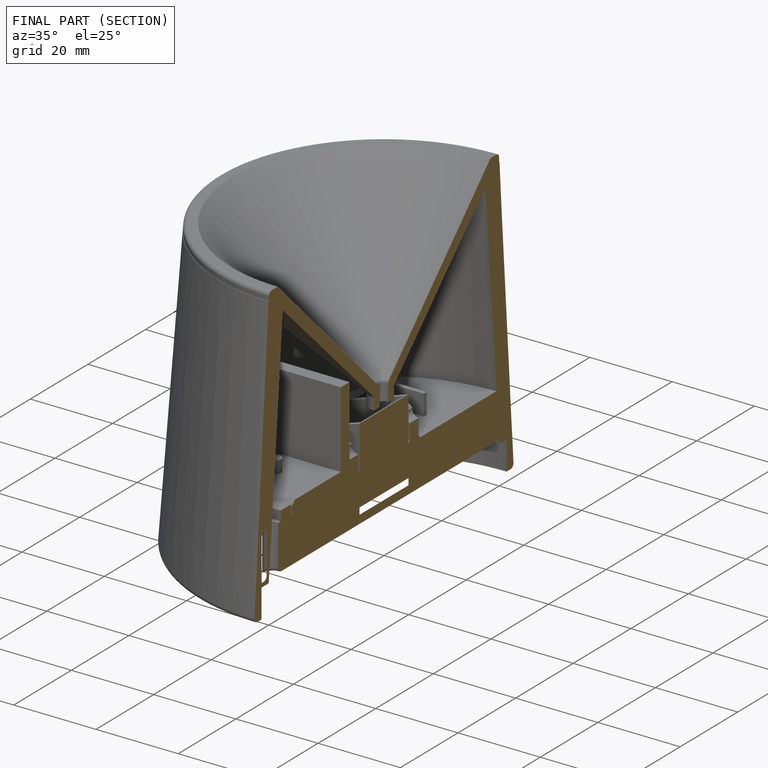
[diagram: finished part — half-section view (interior)]
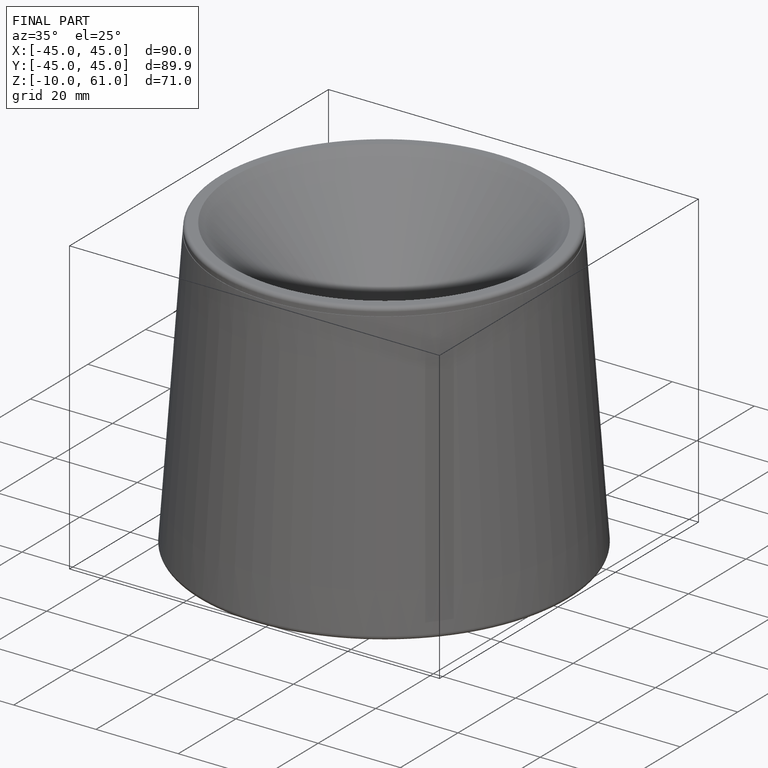
[diagram: finished part — iso view with bounding-box wireframe]
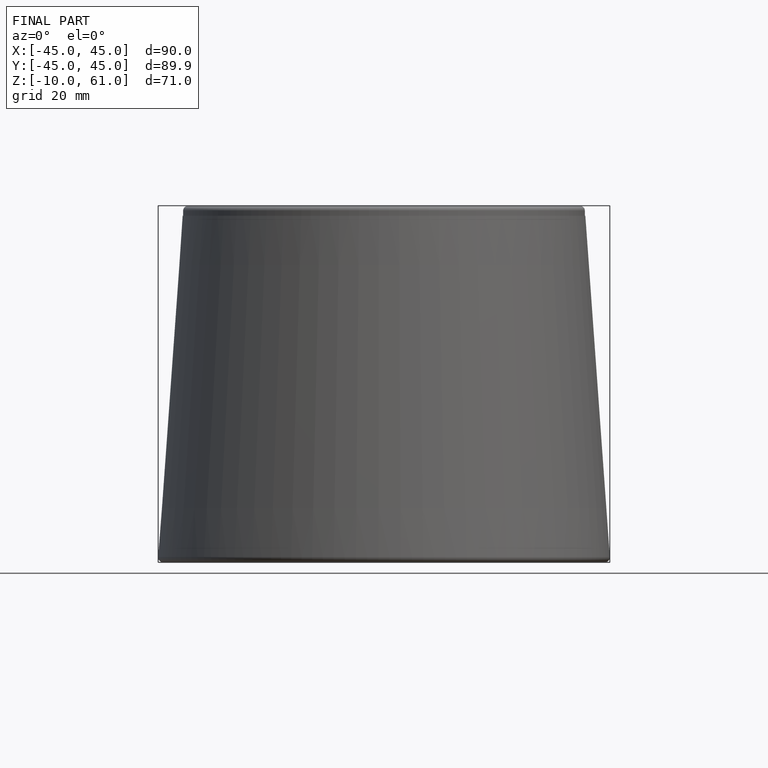
[diagram: finished part — front view with bounding-box wireframe]
